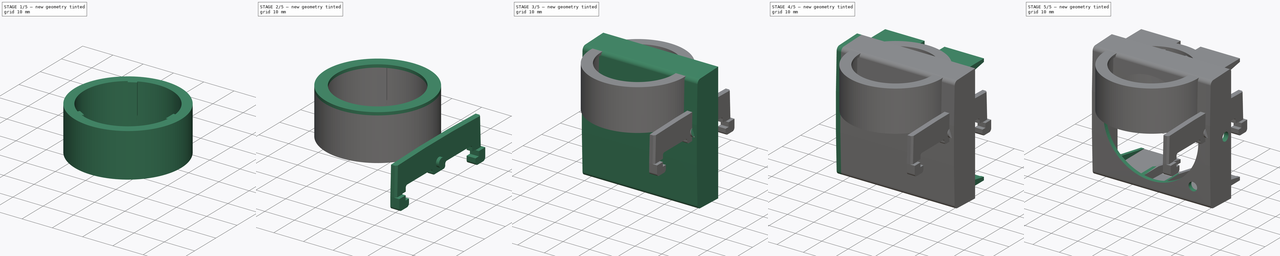
[diagram: build sequence overview — one tinted view per stage of 5, left to right]
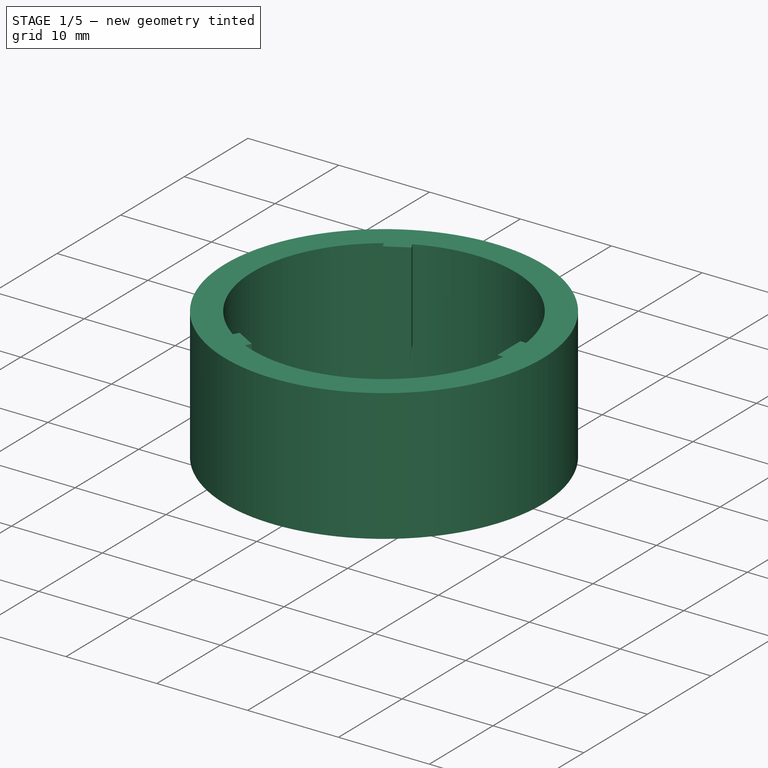
[diagram: stage 1 of 5 — iso view after this stage's code; geometry added in this stage tinted green]
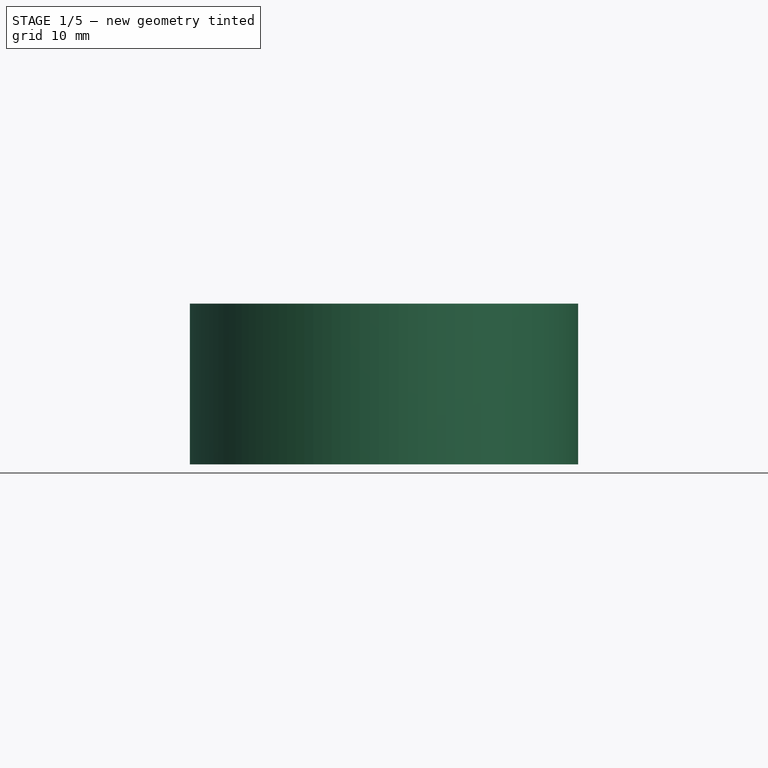
[diagram: stage 1 of 5 — front view after this stage's code; geometry added in this stage tinted green]
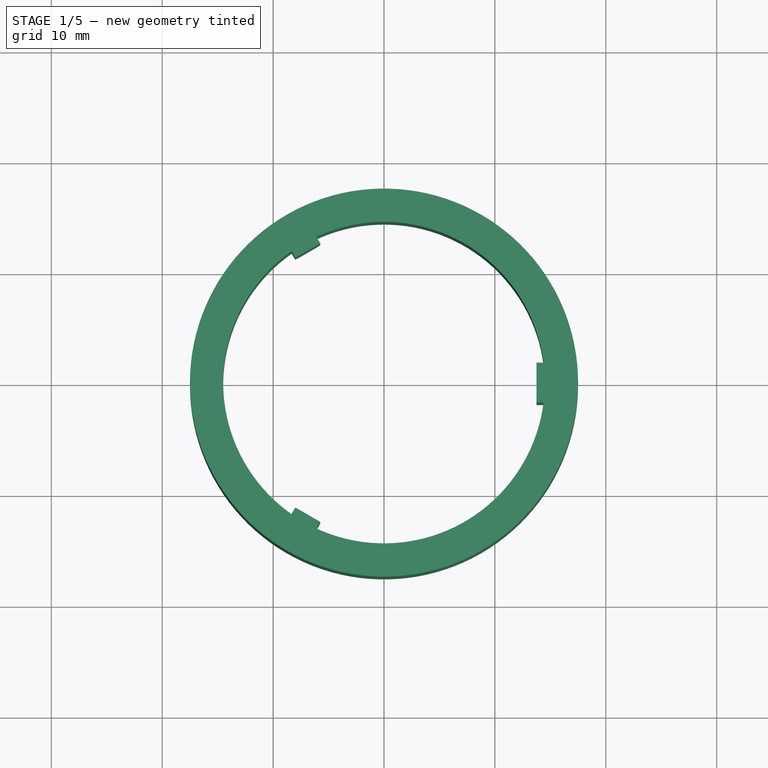
[diagram: stage 1 of 5 — top view after this stage's code; geometry added in this stage tinted green]
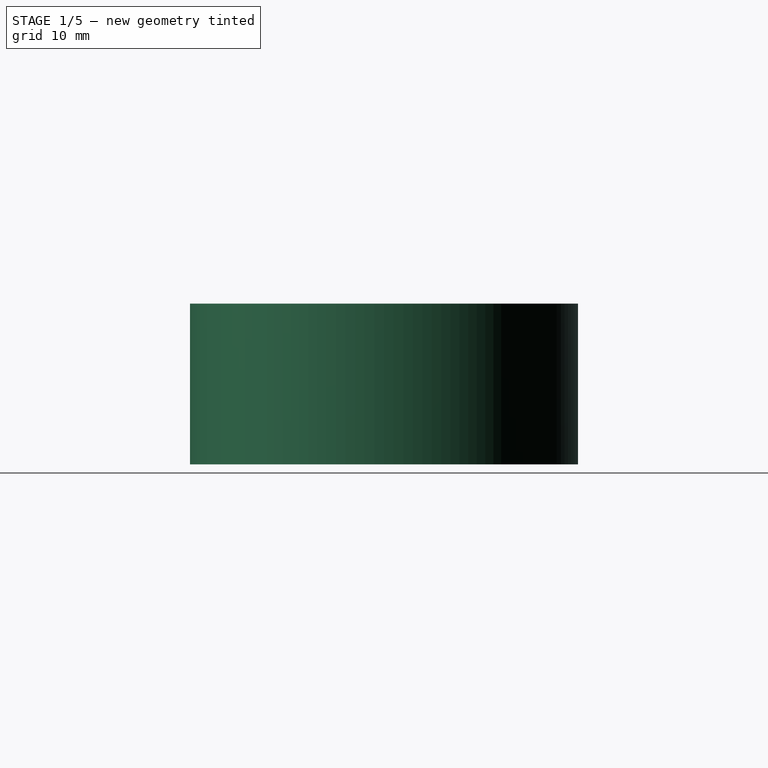
[diagram: stage 1 of 5 — right view after this stage's code; geometry added in this stage tinted green]
FCSTD DOCUMENT  (FreeCAD 0.21R33694 (Git))
Label: knob
License: All rights reserved
LicenseURL: http://en.wikipedia.org/wiki/All_rights_reserved
objects: Sketcher::SketchObject×17, PartDesign::Pad×14, PartDesign::Body×6, PartDesign::Chamfer×4, App::VRMLObject×3, PartDesign::Pocket×3, Part::Feature×1, App::MeasureDistance×1, PartDesign::FeatureBase×1
note: 67 computed .brp shape members not serialized (recipe doc carries the construction recipe); baked Part::Feature solids carry a one-line shape summary decoded from their .brp

FEATURE [PartDesign::Body] Body002  label="lightpipe"
  Origin = -> Origin002
FEATURE [PartDesign::Body] Body003  label="button"
  Origin = -> Origin003
FEATURE [Sketcher::SketchObject] Sketch009
  AttachmentOffset = pos=(0,0,20.75) rot=(0,0,1;0rad)
  FullyConstrained = true
  MapMode = 5
  Placement = pos=(0,0,20.75) rot=(0,0,1;0rad)
  Support = -> [XY_Plane001]
  sketch-geometry (21):
    g0: Circle CenterX=0 CenterY=0 CenterZ=0 NormalX=0 NormalY=0 NormalZ=1 AngleXU=0 Radius=14.4
    g1: LineSegment StartX=0 StartY=0 StartZ=0 EndX=-7.2 EndY=12.4708 EndZ=0
    g2: LineSegment StartX=0 StartY=0 StartZ=0 EndX=-7.2 EndY=-12.4708 EndZ=0
    g3: LineSegment StartX=0 StartY=0 StartZ=0 EndX=14.4 EndY=0 EndZ=0
    g4: LineSegment StartX=-8.34664 StartY=11.8568 StartZ=0 EndX=-8.00083 EndY=11.2578 EndZ=0
    g5: LineSegment StartX=-8.00083 StartY=11.2578 StartZ=0 EndX=-5.74917 EndY=12.5578 EndZ=0
    g6: LineSegment StartX=-5.74917 StartY=12.5578 StartZ=0 EndX=-6.09497 EndY=13.1568 EndZ=0
    g7: ArcOfCircle CenterX=0 CenterY=0 CenterZ=0 NormalX=0 NormalY=0 NormalZ=1 AngleXU=0 Radius=14.5 StartAngle=0.124459 EndAngle=2.00462
    g8: ArcOfCircle CenterX=0 CenterY=0 CenterZ=0 NormalX=0 NormalY=0 NormalZ=1 AngleXU=0 Radius=14.5 StartAngle=4.27857 EndAngle=6.15873
    g9: ArcOfCircle CenterX=0 CenterY=0 CenterZ=0 NormalX=0 NormalY=0 NormalZ=1 AngleXU=0 Radius=14.5 StartAngle=2.18417 EndAngle=4.09901
    g10: ArcOfCircle CenterX=0 CenterY=0 CenterZ=0 NormalX=0 NormalY=0 NormalZ=1 AngleXU=0 Radius=14.5 StartAngle=2.00462 EndAngle=2.18417
    g11: ArcOfCircle CenterX=0 CenterY=0 CenterZ=0 NormalX=0 NormalY=0 NormalZ=1 AngleXU=0 Radius=14.5 StartAngle=6.15873 EndAngle=6.40764
    g12: ArcOfCircle CenterX=0 CenterY=0 CenterZ=0 NormalX=0 NormalY=0 NormalZ=1 AngleXU=0 Radius=14.5 StartAngle=4.09901 EndAngle=4.27857
    g13: LineSegment StartX=14.3878 StartY=1.8 StartZ=0 EndX=13.75 EndY=1.8 EndZ=0
    g14: LineSegment StartX=14.3878 StartY=-1.8 StartZ=0 EndX=13.75 EndY=-1.8 EndZ=0
    g15: LineSegment StartX=13.75 StartY=1.8 StartZ=0 EndX=13.75 EndY=-1.8 EndZ=0
    g16: LineSegment StartX=-8.34664 StartY=-11.8568 StartZ=0 EndX=-8.00083 EndY=-11.2578 EndZ=0
    g17: LineSegment StartX=-8.00083 StartY=-11.2578 StartZ=0 EndX=-5.74917 EndY=-12.5578 EndZ=0
    g18: LineSegment StartX=-5.74917 StartY=-12.5578 StartZ=0 EndX=-6.09497 EndY=-13.1568 EndZ=0
    g19: Circle CenterX=0 CenterY=0 CenterZ=0 NormalX=0 NormalY=0 NormalZ=1 AngleXU=0 Radius=13.75
    g20: Circle CenterX=0 CenterY=0 CenterZ=0 NormalX=0 NormalY=0 NormalZ=1 AngleXU=0 Radius=17.5
  constraints (55):
    c: Coincident(g0,g-1)
    c: Diameter(g0) = 28.8
    c: Coincident(g1,g0)
    c: PointOnObject(g1,g0)
    c: Coincident(g2,g0)
    c: PointOnObject(g2,g0)
    c: Coincident(g3,g0)
    c: PointOnObject(g3,g0)
    c: Horizontal(g3)
    c: Angle(g3,g1) = 2.0944
    c: Angle(g2,g3) = 2.0944
    c: Coincident(g4,g5)
    c: Coincident(g5,g6)
    c: Parallel(g4,g1)
    c: Parallel(g1,g6)
    c: Symmetric(g4,g5,g1)
    c: Coincident(g7,g0)
    c: Coincident(g7,g6)
    c: Coincident(g8,g7)
    c: Coincident(g9,g7)
    c: Coincident(g4,g9)
    c: Coincident(g10,g7)
    c: Coincident(g10,g4)
    c: Coincident(g10,g6)
    c: Coincident(g11,g7)
    c: Coincident(g11,g7)
    c: Coincident(g11,g8)
    c: Coincident(g12,g7)
    c: Coincident(g12,g8)
    c: Coincident(g12,g9)
    c: Coincident(g13,g7)
    c: Horizontal(g13)
    c: Coincident(g14,g8)
    c: Horizontal(g14)
    c: Coincident(g15,g13)
    c: Coincident(g15,g14)
    c: Symmetric(g13,g14,g3)
    c: Coincident(g16,g9)
    c: Coincident(g17,g16)
    c: Coincident(g18,g17)
    c: Coincident(g18,g8)
    c: Symmetric(g17,g16,g2)
    c: Parallel(g18,g16)
    c: Parallel(g18,g2)
    c: Coincident(g19,g7)
    c: Tangent(g19,g15)
    c: Tangent(g17,g19)
    c: Tangent(g19,g5)
    c: Diameter(g19) = 27.5
    c: Diameter(g7) = 29
    c: DistanceY(g15,g15) = 3.6
    c: Equal(g5,g17)
    c: Distance(g5) = 2.6
    c: Coincident(g20,g7)
    c: Diameter(g20) = 35
FEATURE [PartDesign::Pad] Pad008
  Direction = (0,0,1)
  Length = 11.5
  Length2 = 10
  Profile = -> Sketch009
  ReferenceAxis = -> Sketch009 [N_Axis]
  Reversed = true
  Type = 0
FEATURE [PartDesign::Body] Body005  label="lock_clone"
  BaseFeature = -> Body004
  Group = -> [Clone]
  Origin = -> Origin005
  Placement = pos=(0,0,0) rot=(0,0,1;3.14159rad)
  Tip = -> Clone
FEATURE [Sketcher::SketchObject] Sketch016
  AttachmentOffset = pos=(0,0,9.25) rot=(0,0,1;0rad)
  FullyConstrained = false
  MapMode = 5
  Placement = pos=(0,0,9.25) rot=(0,0,1;0rad)
  Support = -> [XY_Plane001]
  sketch-geometry (22):
    g0: Circle CenterX=0 CenterY=0 CenterZ=0 NormalX=0 NormalY=0 NormalZ=1 AngleXU=0 Radius=14.4
    g1: LineSegment StartX=0 StartY=0 StartZ=0 EndX=-7.2 EndY=12.4708 EndZ=0
    g2: LineSegment StartX=0 StartY=0 StartZ=0 EndX=-7.2 EndY=-12.4708 EndZ=0
    g3: LineSegment StartX=0 StartY=0 StartZ=0 EndX=14.4 EndY=0 EndZ=0
    g4: LineSegment StartX=-8.34664 StartY=11.8568 StartZ=0 EndX=-8.00083 EndY=11.2578 EndZ=0
    g5: LineSegment StartX=-8.00083 StartY=11.2578 StartZ=0 EndX=-5.74917 EndY=12.5578 EndZ=0
    g6: LineSegment StartX=-5.74917 StartY=12.5578 StartZ=0 EndX=-6.09497 EndY=13.1568 EndZ=0
    g7: ArcOfCircle CenterX=0 CenterY=0 CenterZ=0 NormalX=0 NormalY=0 NormalZ=1 AngleXU=0 Radius=14.5 StartAngle=0.124459 EndAngle=2.00462
    g8: ArcOfCircle CenterX=0 CenterY=0 CenterZ=0 NormalX=0 NormalY=0 NormalZ=1 AngleXU=0 Radius=14.5 StartAngle=4.27857 EndAngle=6.15873
    g9: ArcOfCircle CenterX=0 CenterY=0 CenterZ=0 NormalX=0 NormalY=0 NormalZ=1 AngleXU=0 Radius=14.5 StartAngle=2.18417 EndAngle=4.09901
    g10: ArcOfCircle CenterX=0 CenterY=0 CenterZ=0 NormalX=0 NormalY=0 NormalZ=1 AngleXU=0 Radius=14.5 StartAngle=2.00462 EndAngle=2.18417
    g11: ArcOfCircle CenterX=0 CenterY=0 CenterZ=0 NormalX=0 NormalY=0 NormalZ=1 AngleXU=0 Radius=14.5 StartAngle=6.15873 EndAngle=6.40764
    g12: ArcOfCircle CenterX=0 CenterY=0 CenterZ=0 NormalX=0 NormalY=0 NormalZ=1 AngleXU=0 Radius=14.5 StartAngle=4.09901 EndAngle=4.27857
    g13: LineSegment StartX=14.3878 StartY=1.8 StartZ=0 EndX=13.75 EndY=1.8 EndZ=0
    g14: LineSegment StartX=14.3878 StartY=-1.8 StartZ=0 EndX=13.75 EndY=-1.8 EndZ=0
    g15: LineSegment StartX=13.75 StartY=1.8 StartZ=0 EndX=13.75 EndY=-1.8 EndZ=0
    g16: LineSegment StartX=-8.34664 StartY=-11.8568 StartZ=0 EndX=-8.00083 EndY=-11.2578 EndZ=0
    g17: LineSegment StartX=-8.00083 StartY=-11.2578 StartZ=0 EndX=-5.74917 EndY=-12.5578 EndZ=0
    g18: LineSegment StartX=-5.74917 StartY=-12.5578 StartZ=0 EndX=-6.09497 EndY=-13.1568 EndZ=0
    g19: Circle CenterX=0 CenterY=0 CenterZ=0 NormalX=0 NormalY=0 NormalZ=1 AngleXU=0 Radius=13.75
    g20: Circle CenterX=0 CenterY=0 CenterZ=0 NormalX=0 NormalY=0 NormalZ=1 AngleXU=0 Radius=17.5
    g21: ArcOfCircle CenterX=0 CenterY=0 CenterZ=0 NormalX=0 NormalY=0 NormalZ=1 AngleXU=0 Radius=14.5 StartAngle=0.124459 EndAngle=6.15873
  constraints (56):
    c: Coincident(g0,g-1)
    c: Diameter(g0) = 28.8
    c: Coincident(g1,g0)
    c: PointOnObject(g1,g0)
    c: Coincident(g2,g0)
    c: PointOnObject(g2,g0)
    c: Coincident(g3,g0)
    c: PointOnObject(g3,g0)
    c: Horizontal(g3)
    c: Angle(g3,g1) = 2.0944
    c: Angle(g2,g3) = 2.0944
    c: Coincident(g4,g5)
    c: Coincident(g5,g6)
    c: Parallel(g4,g1)
    c: Parallel(g1,g6)
    c: Symmetric(g4,g5,g1)
    c: Coincident(g7,g0)
    c: Coincident(g7,g6)
    c: Coincident(g8,g7)
    c: Coincident(g9,g7)
    c: Coincident(g4,g9)
    c: Coincident(g10,g7)
    c: Coincident(g10,g4)
    c: Coincident(g10,g6)
    c: Coincident(g11,g7)
    c: Coincident(g11,g7)
    c: Coincident(g12,g7)
    c: Coincident(g12,g8)
    c: Coincident(g12,g9)
    c: Coincident(g13,g7)
    c: Horizontal(g13)
    c: Coincident(g14,g8)
    c: Horizontal(g14)
    c: Coincident(g15,g13)
    c: Coincident(g15,g14)
    c: Symmetric(g13,g14,g3)
    c: Coincident(g16,g9)
    c: Coincident(g17,g16)
    c: Coincident(g18,g17)
    c: Coincident(g18,g8)
    c: Symmetric(g17,g16,g2)
    c: Parallel(g18,g16)
    c: Parallel(g18,g2)
    c: Coincident(g19,g7)
    c: Tangent(g19,g15)
    c: Tangent(g17,g19)
    c: Tangent(g19,g5)
    c: Diameter(g19) = 27.5
    c: Diameter(g7) = 29
    c: DistanceY(g15,g15) = 3.6
    c: Equal(g5,g17)
    c: Distance(g5) = 2.6
    c: Coincident(g20,g7)
    c: Diameter(g20) = 35
    c: Coincident(g21,g20)
    c: Coincident(g21,g13)
FEATURE [Sketcher::SketchObject] Sketch017
  AttachmentOffset = pos=(0,0,20.75) rot=(0,0,1;0rad)
  FullyConstrained = true
  MapMode = 5
  Placement = pos=(0,0,20.75) rot=(0,0,1;0rad)
  Support = -> [XY_Plane001]
  sketch-geometry (2):
    g0: Circle CenterX=0 CenterY=0 CenterZ=0 NormalX=0 NormalY=0 NormalZ=1 AngleXU=0 Radius=13.75
    g1: Circle CenterX=0 CenterY=0 CenterZ=0 NormalX=0 NormalY=0 NormalZ=1 AngleXU=0 Radius=17.5
  constraints (4):
    c: Coincident(g0,g-1)
    c: Coincident(g1,g0)
    c: Diameter(g1) = 35
    c: Diameter(g0) = 27.5
FEATURE [PartDesign::Chamfer] Chamfer
  Angle = 45
  Base = -> Pad008 [Edge39,Edge34,Edge10,Edge16]
  BaseFeature = -> Pad008
  ChamferType = 1
  FlipDirection = false
  Size = 1.5
  Size2 = 0.25
  SupportTransform = false
  UseAllEdges = false
FEATURE [PartDesign::Pad] Pad012
  BaseFeature = -> Chamfer
  Direction = (0,0,1)
  Length = 3
  Length2 = 10
  Profile = -> Sketch016
  ReferenceAxis = -> Sketch016 [N_Axis]
  Reversed = true
  Type = 0
FEATURE [PartDesign::Chamfer] Chamfer003
  Angle = 45
  Base = -> Pad012 [Edge63,Edge61]
  BaseFeature = -> Pad012
  ChamferType = 1
  FlipDirection = false
  Size = 1.5
  Size2 = 0.25
  SupportTransform = false
  UseAllEdges = false
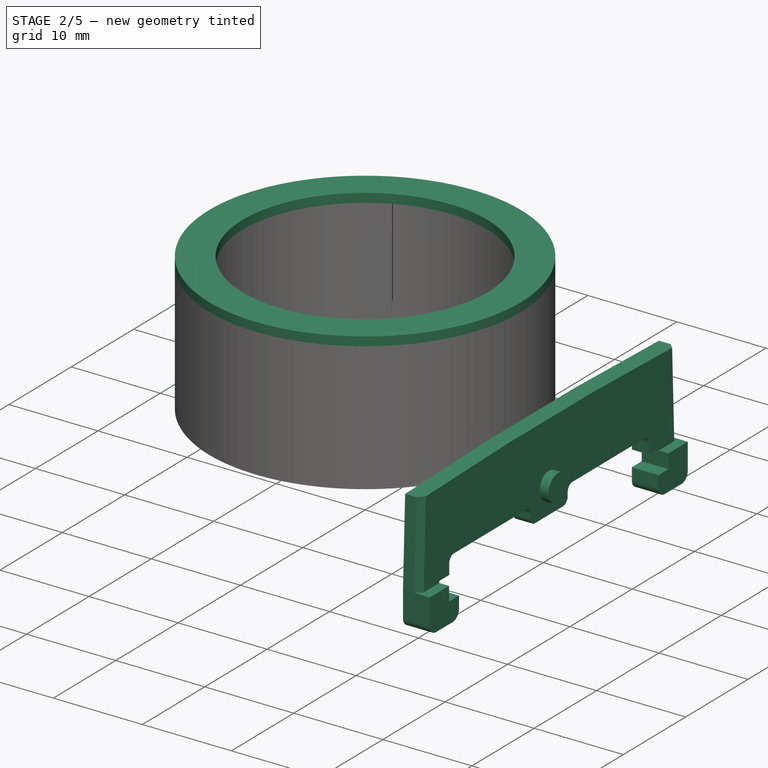
[diagram: stage 2 of 5 — iso view after this stage's code; geometry added in this stage tinted green]
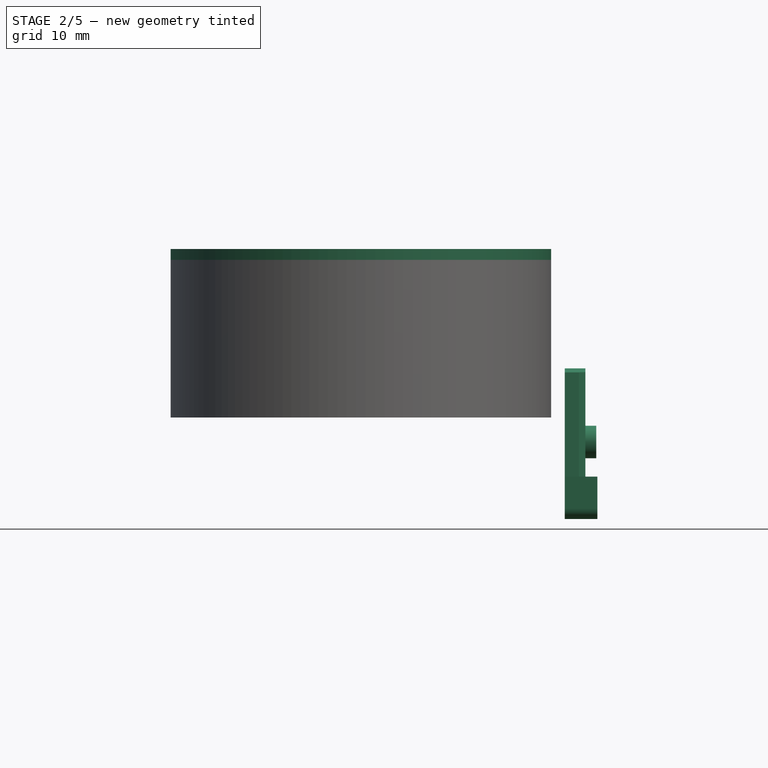
[diagram: stage 2 of 5 — front view after this stage's code; geometry added in this stage tinted green]
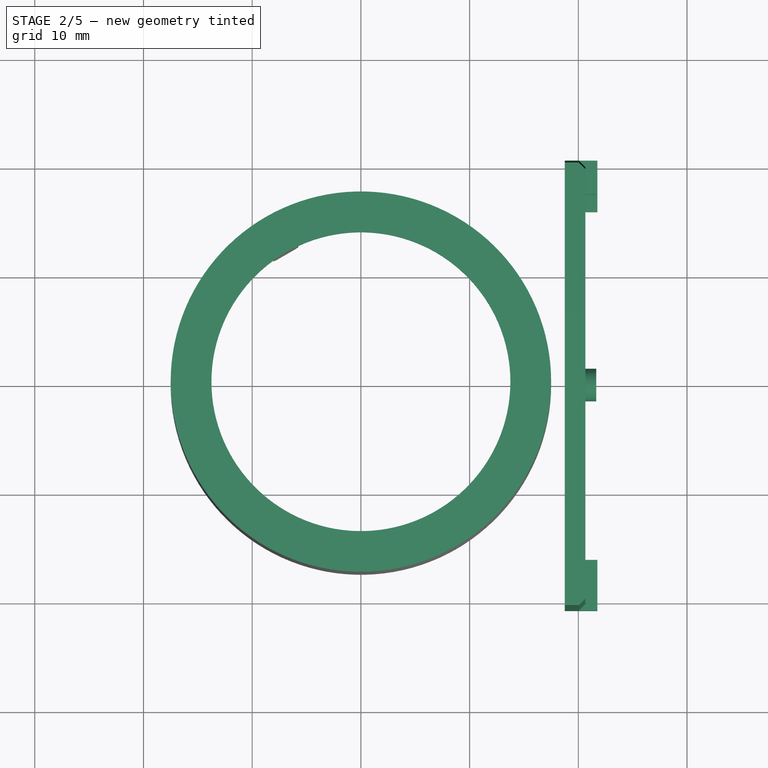
[diagram: stage 2 of 5 — top view after this stage's code; geometry added in this stage tinted green]
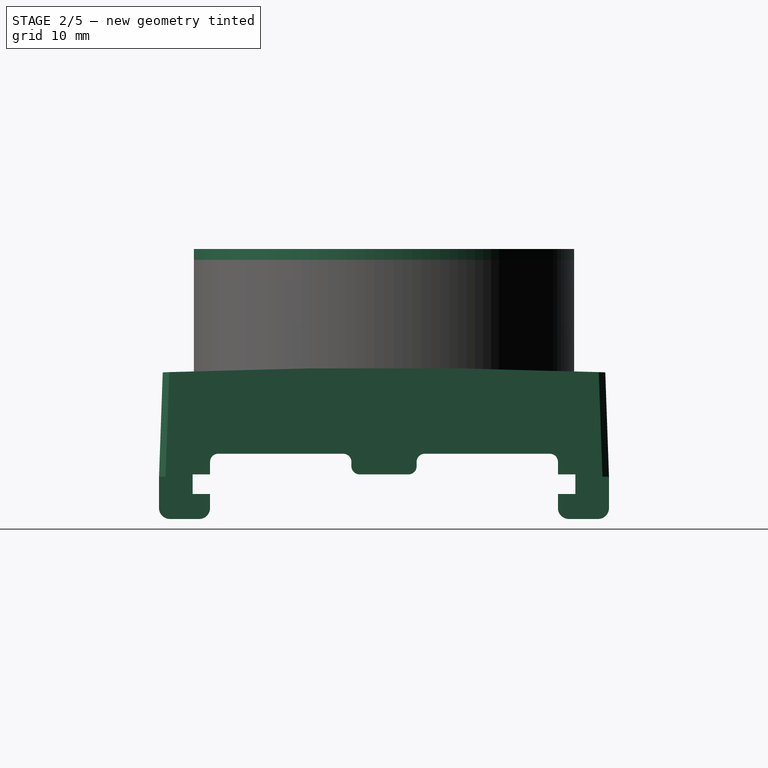
[diagram: stage 2 of 5 — right view after this stage's code; geometry added in this stage tinted green]
FEATURE [Sketcher::SketchObject] Sketch011
  AttachmentOffset = pos=(0,12,18.75) rot=(0,0,1;-1.5708rad)
  FullyConstrained = false
  MapMode = 5
  Placement = pos=(18.75,-1.5e-15,12) rot=(0,-1,0;4.71239rad)
  Support = -> [YZ_Plane004]
  sketch-geometry (77):
    g0: ArcOfCircle CenterX=499.612 CenterY=0 CenterZ=0 NormalX=0 NormalY=0 NormalZ=1 AngleXU=0 Radius=500.033 StartAngle=3.10056 EndAngle=3.18263
    g1: GeomPoint X=-0.4209 Y=0 Z=0
    g2: ArcOfCircle CenterX=1.49874 CenterY=20.4507 CenterZ=0 NormalX=0 NormalY=0 NormalZ=1 AngleXU=0 Radius=1.5 StartAngle=1.60638 EndAngle=3.10056
    g3: LineSegment StartX=1.44537 StartY=21.9497 StartZ=0 EndX=11.0791 EndY=22.2927 EndZ=0
    g4: LineSegment StartX=11.0791 StartY=22.2927 StartZ=0 EndX=11.0791 EndY=-22.2927 EndZ=0
    g5: ArcOfCircle CenterX=499.612 CenterY=0 CenterZ=0 NormalX=0 NormalY=0 NormalZ=1 AngleXU=0 Radius=498.533 StartAngle=3.10056 EndAngle=3.18263
    g6: GeomPoint X=11.0791 Y=0 Z=0
    g7: ArcOfCircle CenterX=1.49874 CenterY=-20.4507 CenterZ=0 NormalX=0 NormalY=0 NormalZ=1 AngleXU=0 Radius=1.5 StartAngle=3.18263 EndAngle=4.6768
    g8: LineSegment StartX=1.44537 StartY=-21.9497 StartZ=0 EndX=11.0791 EndY=-22.2927 EndZ=0
    g9: LineSegment StartX=1.49874 StartY=20.4507 StartZ=0 EndX=11.0791 EndY=20.7917 EndZ=0
    g10: LineSegment StartX=1.49874 StartY=-20.4507 StartZ=0 EndX=11.0791 EndY=-20.7917 EndZ=0
    g11: LineSegment StartX=11.0791 StartY=20.7917 StartZ=0 EndX=11.0791 EndY=22.2927 EndZ=0
    g12: LineSegment StartX=11.0791 StartY=-22.2927 StartZ=0 EndX=11.0791 EndY=-20.7917 EndZ=0
    g13: LineSegment StartX=11.0791 StartY=17.5 StartZ=0 EndX=12.6791 EndY=17.5 EndZ=0
    g14: LineSegment StartX=11.0791 StartY=-17.5 StartZ=0 EndX=12.6791 EndY=-17.5 EndZ=0
    g15: LineSegment StartX=11.1791 StartY=20.6952 StartZ=0 EndX=1.59486 EndY=20.354 EndZ=0
    g16: LineSegment StartX=11.1791 StartY=20.6952 StartZ=0 EndX=14.0791 EndY=20.6952 EndZ=0
    g17: LineSegment StartX=15.0791 StartY=19.6952 StartZ=0 EndX=15.0791 EndY=17 EndZ=0
    g18: LineSegment StartX=14.0791 StartY=16 StartZ=0 EndX=12.7791 EndY=16 EndZ=0
    g19: LineSegment StartX=12.7791 StartY=16 StartZ=0 EndX=12.7791 EndY=17.6 EndZ=0
    g20: LineSegment StartX=12.7791 StartY=17.6 StartZ=0 EndX=10.9791 EndY=17.6 EndZ=0
    g21: LineSegment StartX=10.9791 StartY=17.6 StartZ=0 EndX=10.9791 EndY=16 EndZ=0
    g22: LineSegment StartX=10.9791 StartY=16 StartZ=0 EndX=9.8291 EndY=16 EndZ=0
    g23: LineSegment StartX=9.0791 StartY=15.25 StartZ=0 EndX=9.0791 EndY=3.75 EndZ=0
    g24: LineSegment StartX=9.8291 StartY=3 StartZ=0 EndX=10.2291 EndY=3 EndZ=0
    g25: LineSegment StartX=10.9791 StartY=2.25 StartZ=0 EndX=10.9791 EndY=-2.25 EndZ=0
    g26: LineSegment StartX=10.2291 StartY=-3 StartZ=0 EndX=9.8291 EndY=-3 EndZ=0
    g27: LineSegment StartX=9.0791 StartY=-3.75 StartZ=0 EndX=9.0791 EndY=-15.25 EndZ=0
    g28: LineSegment StartX=9.8291 StartY=-16 StartZ=0 EndX=10.9791 EndY=-16 EndZ=0
    g29: LineSegment StartX=10.9791 StartY=-16 StartZ=0 EndX=10.9791 EndY=-17.6 EndZ=0
    g30: LineSegment StartX=10.9791 StartY=-17.6 StartZ=0 EndX=12.7791 EndY=-17.6 EndZ=0
    g31: LineSegment StartX=12.7791 StartY=-17.6 StartZ=0 EndX=12.7791 EndY=-16 EndZ=0
    g32: LineSegment StartX=12.7791 StartY=-16 StartZ=0 EndX=14.0791 EndY=-16 EndZ=0
    g33: LineSegment StartX=15.0791 StartY=-17 StartZ=0 EndX=15.0791 EndY=-19.6952 EndZ=0
    g34: LineSegment StartX=14.0791 StartY=-20.6952 StartZ=0 EndX=11.1791 EndY=-20.6952 EndZ=0
    g35: LineSegment StartX=11.1791 StartY=-20.6952 StartZ=0 EndX=1.59486 EndY=-20.354 EndZ=0
    g36: LineSegment StartX=10.9791 StartY=16 StartZ=0 EndX=12.7791 EndY=16 EndZ=0
    g37: LineSegment StartX=10.9791 StartY=16 StartZ=0 EndX=10.9791 EndY=3 EndZ=0
    g38: LineSegment StartX=10.9791 StartY=-16 StartZ=0 EndX=10.9791 EndY=-3 EndZ=0
    g39: LineSegment StartX=10.9791 StartY=-16 StartZ=0 EndX=12.7791 EndY=-16 EndZ=0
    g40: LineSegment StartX=12.7791 StartY=-16 StartZ=0 EndX=12.7791 EndY=16 EndZ=0
    g41: LineSegment StartX=15.0791 StartY=16 StartZ=0 EndX=15.0791 EndY=-16 EndZ=0
    g42: LineSegment StartX=9.0791 StartY=3 StartZ=0 EndX=9.0791 EndY=-3 EndZ=0
    g43: LineSegment StartX=11.1791 StartY=20.6952 StartZ=0 EndX=11.1791 EndY=-20.6952 EndZ=0
    g44: LineSegment StartX=1.59486 StartY=-20.354 StartZ=0 EndX=1.59486 EndY=20.354 EndZ=0
    g45: ArcOfCircle CenterX=499.612 CenterY=0 CenterZ=0 NormalX=0 NormalY=0 NormalZ=1 AngleXU=0 Radius=498.433 StartAngle=3.10075 EndAngle=3.18244
    g46: ArcOfCircle CenterX=14.0791 CenterY=19.6952 CenterZ=0 NormalX=0 NormalY=0 NormalZ=1 AngleXU=0 Radius=1 StartAngle=-9e-16 EndAngle=1.5708
    g47: GeomPoint X=15.0791 Y=20.6952 Z=0
    g48: ArcOfCircle CenterX=14.0791 CenterY=17 CenterZ=0 NormalX=0 NormalY=0 NormalZ=1 AngleXU=0 Radius=1 StartAngle=4.71239 EndAngle=6.28319
    g49: GeomPoint X=15.0791 Y=16 Z=0
    g50: ArcOfCircle CenterX=14.0791 CenterY=-17 CenterZ=0 NormalX=0 NormalY=0 NormalZ=1 AngleXU=0 Radius=1 StartAngle=0 EndAngle=1.5708
    g51: GeomPoint X=15.0791 Y=-16 Z=0
    g52: ArcOfCircle CenterX=14.0791 CenterY=-19.6952 CenterZ=0 NormalX=0 NormalY=0 NormalZ=1 AngleXU=0 Radius=1 StartAngle=4.71239 EndAngle=6.28319
    g53: GeomPoint X=15.0791 Y=-20.6952 Z=0
    g54: ArcOfCircle CenterX=9.8291 CenterY=15.25 CenterZ=0 NormalX=0 NormalY=0 NormalZ=1 AngleXU=0 Radius=0.75 StartAngle=1.5708 EndAngle=3.14159
    g55: GeomPoint X=9.0791 Y=16 Z=0
    g56: ArcOfCircle CenterX=9.8291 CenterY=3.75 CenterZ=0 NormalX=0 NormalY=0 NormalZ=1 AngleXU=0 Radius=0.75 StartAngle=3.14159 EndAngle=4.71239
    g57: GeomPoint X=9.0791 Y=3 Z=0
    g58: ArcOfCircle CenterX=9.8291 CenterY=-3.75 CenterZ=0 NormalX=0 NormalY=0 NormalZ=1 AngleXU=0 Radius=0.75 StartAngle=1.5708 EndAngle=3.14159
    g59: GeomPoint X=9.0791 Y=-3 Z=0
    g60: ArcOfCircle CenterX=10.2291 CenterY=-2.25 CenterZ=0 NormalX=0 NormalY=0 NormalZ=1 AngleXU=0 Radius=0.75 StartAngle=4.71239 EndAngle=6.28319
    g61: GeomPoint X=10.9791 Y=-3 Z=0
    g62: ArcOfCircle CenterX=10.2291 CenterY=2.25 CenterZ=0 NormalX=0 NormalY=0 NormalZ=1 AngleXU=0 Radius=0.75 StartAngle=0 EndAngle=1.5708
    g63: GeomPoint X=10.9791 Y=3 Z=0
    g64: ArcOfCircle CenterX=9.8291 CenterY=-15.25 CenterZ=0 NormalX=0 NormalY=0 NormalZ=1 AngleXU=0 Radius=0.75 StartAngle=3.14159 EndAngle=4.71239
    g65: GeomPoint X=9.0791 Y=-16 Z=0
    g66: LineSegment StartX=12.6791 StartY=17.5 StartZ=0 EndX=12.6791 EndY=16 EndZ=0
    g67: LineSegment StartX=12.6791 StartY=16 StartZ=0 EndX=11.0791 EndY=16 EndZ=0
    g68: LineSegment StartX=12.6791 StartY=-17.5 StartZ=0 EndX=12.6791 EndY=-16 EndZ=0
    g69: LineSegment StartX=12.6791 StartY=-16 StartZ=0 EndX=11.0791 EndY=-16 EndZ=0
    g70: LineSegment StartX=5.97147 StartY=-20.6099 StartZ=0 EndX=5.97503 EndY=-20.51 EndZ=0
    g71: LineSegment StartX=1.0791 StartY=0 StartZ=0 EndX=1.1791 EndY=0 EndZ=0
    g72: LineSegment StartX=11.1791 StartY=-20.6952 StartZ=0 EndX=11.0791 EndY=-20.6952 EndZ=0
    g73: LineSegment StartX=11.0791 StartY=17.5 StartZ=0 EndX=10.9791 EndY=17.5 EndZ=0
    g74: LineSegment StartX=12.6791 StartY=17.5 StartZ=0 EndX=12.6791 EndY=17.6 EndZ=0
    g75: LineSegment StartX=12.6791 StartY=16 StartZ=0 EndX=12.7791 EndY=16 EndZ=0
    g76: LineSegment StartX=12.7791 StartY=16 StartZ=0 EndX=12.7791 EndY=20.6952 EndZ=0
  constraints (195):
    c: PointOnObject(g0,g-1)
    c: PointOnObject(g0,g-2)
    c: PointOnObject(g0,g-2)
    c: DistanceY(g0,g0) = 41.0244
    c: PointOnObject(g1,g0)
    c: PointOnObject(g1,g-1)
    c: DistanceX(g1,g-1) = 0.4209
    c: Tangent(g2,g0) = -1.5708
    c: Radius(g2) = 1.5
    c: Angle(g2) = 1.49418
    c: Tangent(g3,g2) = 1.5708
    c: Coincident(g4,g3)
    c: Coincident(g5,g0)
    c: Coincident(g5,g2)
    c: PointOnObject(g6,g4)
    c: PointOnObject(g6,g-1)
    c: DistanceX(g1,g6) = 11.5
    c: Coincident(g7,g5)
    c: Coincident(g8,g4)
    c: Tangent(g7,g0) = -1.5708
    c: Tangent(g8,g7) = -1.5708
    c: Symmetric(g4,g3,g-1)
    c: Coincident(g9,g2)
    c: PointOnObject(g9,g4)
    c: Coincident(g10,g5)
    c: PointOnObject(g10,g4)
    c: Parallel(g9,g3)
    c: Parallel(g10,g8)
    c: Coincident(g11,g9)
    c: Coincident(g11,g3)
    c: Coincident(g12,g8)
    c: Coincident(g12,g10)
    c: PointOnObject(g13,g4)
    c: Horizontal(g13)
    c: PointOnObject(g14,g4)
    c: Horizontal(g14)
    c: Symmetric(g14,g13,g-1)
    c: DistanceY(g14,g13) = 35
    c: DistanceX(g14,g14) = 1.6
    c: Coincident(g16,g15)
    c: Horizontal(g16)
    c: Vertical(g17)
    c: Horizontal(g18)
    c: Coincident(g18,g19)
    c: Vertical(g19)
    c: Coincident(g19,g20)
    c: Horizontal(g20)
    c: Coincident(g20,g21)
    c: Vertical(g21)
    c: Coincident(g21,g22)
    c: Horizontal(g22)
    c: Vertical(g23)
    c: Horizontal(g24)
    c: Vertical(g25)
    c: Horizontal(g26)
    c: Vertical(g27)
    c: Horizontal(g28)
    c: Coincident(g28,g29)
    c: Vertical(g29)
    c: Coincident(g29,g30)
    c: Horizontal(g30)
    c: Coincident(g30,g31)
    c: Vertical(g31)
    c: Coincident(g31,g32)
    c: Horizontal(g32)
    c: Vertical(g33)
    c: Horizontal(g34)
    c: Coincident(g34,g35)
    c: Parallel(g35,g10)
    c: Parallel(g15,g9)
    c: Coincident(g21,g36)
    c: Coincident(g36,g18)
    c: Horizontal(g36)
    c: Coincident(g37,g21)
    c: Coincident(g37,g63)
    c: Vertical(g37)
    c: Coincident(g38,g28)
    c: Coincident(g38,g61)
    c: Vertical(g38)
    c: Coincident(g39,g28)
    c: Horizontal(g39)
    c: Coincident(g40,g31)
    c: Coincident(g40,g18)
    c: Vertical(g40)
    c: Coincident(g41,g49)
    c: Coincident(g41,g51)
    c: Vertical(g41)
    c: Coincident(g42,g57)
    c: Coincident(g42,g59)
    c: Coincident(g43,g15)
    c: Coincident(g43,g34)
    c: Vertical(g43)
    c: Coincident(g44,g35)
    c: Coincident(g44,g15)
    c: Vertical(g44)
    c: Coincident(g45,g0)
    c: Coincident(g45,g15)
    c: Coincident(g45,g35)
    c: PointOnObject(g47,g16)
    c: PointOnObject(g47,g17)
    c: Tangent(g16,g46) = 1.5708
    c: Tangent(g17,g46) = 1.5708
    c: PointOnObject(g49,g18)
    c: PointOnObject(g49,g17)
    c: Tangent(g18,g48) = 1.5708
    c: Tangent(g17,g48) = 1.5708
    c: PointOnObject(g51,g32)
    c: PointOnObject(g51,g33)
    c: Tangent(g32,g50) = 1.5708
    c: Tangent(g33,g50) = 1.5708
    c: PointOnObject(g53,g34)
    c: PointOnObject(g53,g33)
    c: Tangent(g34,g52) = 1.5708
    c: Tangent(g33,g52) = 1.5708
    c: Equal(g52,g50)
    c: Equal(g50,g48)
    c: Equal(g48,g46)
    c: PointOnObject(g55,g22)
    c: PointOnObject(g55,g23)
    c: Tangent(g22,g54) = -1.5708
    c: Tangent(g23,g54) = -1.5708
    c: PointOnObject(g57,g24)
    c: PointOnObject(g57,g23)
    c: Tangent(g24,g56) = -1.5708
    c: Tangent(g23,g56) = -1.5708
    c: PointOnObject(g59,g26)
    c: PointOnObject(g59,g27)
    c: Tangent(g26,g58) = -1.5708
    c: Tangent(g27,g58) = -1.5708
    c: PointOnObject(g61,g26)
    c: PointOnObject(g61,g25)
    c: Tangent(g26,g60) = 1.5708
    c: Tangent(g25,g60) = 1.5708
    c: PointOnObject(g63,g24)
    c: PointOnObject(g63,g25)
    c: Tangent(g24,g62) = 1.5708
    c: Tangent(g25,g62) = 1.5708
    c: PointOnObject(g65,g28)
    c: PointOnObject(g65,g27)
    c: Tangent(g28,g64) = -1.5708
    c: Tangent(g27,g64) = -1.5708
    c: Equal(g64,g58)
    c: Equal(g58,g60)
    c: Equal(g60,g62)
    c: Equal(g62,g56)
    c: Equal(g56,g54)
    c: Coincident(g66,g13)
    c: Vertical(g66)
    c: Coincident(g67,g66)
    c: PointOnObject(g67,g4)
    c: Horizontal(g67)
    c: Coincident(g68,g14)
    c: Vertical(g68)
    c: Coincident(g69,g68)
    c: PointOnObject(g69,g4)
    c: Horizontal(g69)
    c: DistanceY(g68,g68) = 1.5
    c: Equal(g68,g66)
    c: PointOnObject(g70,g10)
    c: PointOnObject(g70,g35)
    c: Perpendicular(g10,g70)
    c: PointOnObject(g71,g5)
    c: PointOnObject(g71,g45)
    c: Horizontal(g71)
    c: PointOnObject(g71,g-1)
    c: Equal(g71,g70)
    c: Coincident(g72,g34)
    c: PointOnObject(g72,g4)
    c: Equal(g72,g70)
    c: Horizontal(g72)
    c: DistanceX(g71,g71) = 0.1
    c: Coincident(g73,g13)
    c: PointOnObject(g73,g21)
    c: Horizontal(g73)
    c: Coincident(g74,g13)
    c: PointOnObject(g74,g20)
    c: Vertical(g74)
    c: Coincident(g75,g66)
    c: Horizontal(g75)
    c: Equal(g75,g74)
    c: Equal(g74,g73)
    c: DistanceY(g74,g74) = 0.1
    c: Coincident(g18,g75)
    c: DistanceX(g23,g67) = 2
    c: DistanceY(g42,g42) = 6
    c: Symmetric(g42,g42,g-1)
    c: Equal(g29,g21)
    c: Coincident(g31,g39)
    c: Equal(g27,g23)
    c: DistanceX(g9,g17) = 4
    c: Coincident(g76,g18)
    c: PointOnObject(g76,g16)
    c: Vertical(g76)
    c: Diameter(g52) = 2
    c: Diameter(g58) = 1.5
FEATURE [PartDesign::Pad] Pad009
  Direction = (1,-2e-16,0)
  Length = 1.9
  Length2 = 10
  Placement = pos=(0,0,0) rot=(0.57735,0.57735,0.57735;2.0944rad)
  Profile = -> Sketch011
  ReferenceAxis = -> Sketch011 [N_Axis]
  Type = 0
FEATURE [PartDesign::Chamfer] Chamfer002
  Angle = 45
  Base = -> Pad009 [Edge10,Edge16]
  BaseFeature = -> Pad009
  ChamferType = 0
  FlipDirection = false
  Placement = pos=(0,0,0) rot=(0.57735,0.57735,0.57735;2.0944rad)
  Size = 0.6
  Size2 = 1
  SupportTransform = false
  UseAllEdges = false
FEATURE [Sketcher::SketchObject] Sketch012
  AttachmentOffset = pos=(0,12,18.75) rot=(0,0,1;-1.5708rad)
  FullyConstrained = false
  MapMode = 5
  Placement = pos=(18.75,-1.5e-15,12) rot=(0,-1,0;4.71239rad)
  Support = -> [YZ_Plane004]
  sketch-geometry (81):
    g0: ArcOfCircle CenterX=499.612 CenterY=0 CenterZ=0 NormalX=0 NormalY=0 NormalZ=1 AngleXU=0 Radius=500.033 StartAngle=3.10056 EndAngle=3.18263
    g1: GeomPoint X=-0.4209 Y=0 Z=0
    g2: ArcOfCircle CenterX=1.49874 CenterY=20.4507 CenterZ=0 NormalX=0 NormalY=0 NormalZ=1 AngleXU=0 Radius=1.5 StartAngle=1.60638 EndAngle=3.10056
    g3: LineSegment StartX=1.44537 StartY=21.9497 StartZ=0 EndX=11.0791 EndY=22.2927 EndZ=0
    g4: LineSegment StartX=11.0791 StartY=22.2927 StartZ=0 EndX=11.0791 EndY=-22.2927 EndZ=0
    g5: ArcOfCircle CenterX=499.612 CenterY=0 CenterZ=0 NormalX=0 NormalY=0 NormalZ=1 AngleXU=0 Radius=498.533 StartAngle=3.10056 EndAngle=3.18263
    g6: GeomPoint X=11.0791 Y=0 Z=0
    g7: ArcOfCircle CenterX=1.49874 CenterY=-20.4507 CenterZ=0 NormalX=0 NormalY=0 NormalZ=1 AngleXU=0 Radius=1.5 StartAngle=3.18263 EndAngle=4.6768
    g8: LineSegment StartX=1.44537 StartY=-21.9497 StartZ=0 EndX=11.0791 EndY=-22.2927 EndZ=0
    g9: LineSegment StartX=1.49874 StartY=20.4507 StartZ=0 EndX=11.0791 EndY=20.7917 EndZ=0
    g10: LineSegment StartX=1.49874 StartY=-20.4507 StartZ=0 EndX=11.0791 EndY=-20.7917 EndZ=0
    g11: LineSegment StartX=11.0791 StartY=20.7917 StartZ=0 EndX=11.0791 EndY=22.2927 EndZ=0
    g12: LineSegment StartX=11.0791 StartY=-22.2927 StartZ=0 EndX=11.0791 EndY=-20.7917 EndZ=0
    g13: LineSegment StartX=11.0791 StartY=17.5 StartZ=0 EndX=12.6791 EndY=17.5 EndZ=0
    g14: LineSegment StartX=11.0791 StartY=-17.5 StartZ=0 EndX=12.6791 EndY=-17.5 EndZ=0
    g15: LineSegment StartX=11.1791 StartY=20.6952 StartZ=0 EndX=1.59486 EndY=20.354 EndZ=0
    g16: LineSegment StartX=11.1791 StartY=20.6952 StartZ=0 EndX=14.0791 EndY=20.6952 EndZ=0
    g17: LineSegment StartX=15.0791 StartY=19.6952 StartZ=0 EndX=15.0791 EndY=17 EndZ=0
    g18: LineSegment StartX=14.0791 StartY=16 StartZ=0 EndX=12.7791 EndY=16 EndZ=0
    g19: LineSegment StartX=12.7791 StartY=16 StartZ=0 EndX=12.7791 EndY=17.6 EndZ=0
    g20: LineSegment StartX=12.7791 StartY=17.6 StartZ=0 EndX=10.9791 EndY=17.6 EndZ=0
    g21: LineSegment StartX=10.9791 StartY=17.6 StartZ=0 EndX=10.9791 EndY=16 EndZ=0
    g22: LineSegment StartX=10.9791 StartY=16 StartZ=0 EndX=9.8291 EndY=16 EndZ=0
    g23: LineSegment StartX=9.0791 StartY=15.25 StartZ=0 EndX=9.0791 EndY=3.75 EndZ=0
    g24: LineSegment StartX=9.8291 StartY=3 StartZ=0 EndX=10.2291 EndY=3 EndZ=0
    g25: LineSegment StartX=10.9791 StartY=2.25 StartZ=0 EndX=10.9791 EndY=-2.25 EndZ=0
    g26: LineSegment StartX=10.2291 StartY=-3 StartZ=0 EndX=9.8291 EndY=-3 EndZ=0
    g27: LineSegment StartX=9.0791 StartY=-3.75 StartZ=0 EndX=9.0791 EndY=-15.25 EndZ=0
    g28: LineSegment StartX=9.8291 StartY=-16 StartZ=0 EndX=10.9791 EndY=-16 EndZ=0
    g29: LineSegment StartX=10.9791 StartY=-16 StartZ=0 EndX=10.9791 EndY=-17.6 EndZ=0
    g30: LineSegment StartX=10.9791 StartY=-17.6 StartZ=0 EndX=12.7791 EndY=-17.6 EndZ=0
    g31: LineSegment StartX=12.7791 StartY=-17.6 StartZ=0 EndX=12.7791 EndY=-16 EndZ=0
    g32: LineSegment StartX=12.7791 StartY=-16 StartZ=0 EndX=14.0791 EndY=-16 EndZ=0
    g33: LineSegment StartX=15.0791 StartY=-17 StartZ=0 EndX=15.0791 EndY=-19.6952 EndZ=0
    g34: LineSegment StartX=14.0791 StartY=-20.6952 StartZ=0 EndX=11.1791 EndY=-20.6952 EndZ=0
    g35: LineSegment StartX=11.1791 StartY=-20.6952 StartZ=0 EndX=1.59486 EndY=-20.354 EndZ=0
    g36: LineSegment StartX=10.9791 StartY=16 StartZ=0 EndX=12.7791 EndY=16 EndZ=0
    g37: LineSegment StartX=10.9791 StartY=16 StartZ=0 EndX=10.9791 EndY=3 EndZ=0
    g38: LineSegment StartX=10.9791 StartY=-16 StartZ=0 EndX=10.9791 EndY=-3 EndZ=0
    g39: LineSegment StartX=10.9791 StartY=-16 StartZ=0 EndX=12.7791 EndY=-16 EndZ=0
    g40: LineSegment StartX=12.7791 StartY=-16 StartZ=0 EndX=12.7791 EndY=16 EndZ=0
    g41: LineSegment StartX=15.0791 StartY=16 StartZ=0 EndX=15.0791 EndY=-16 EndZ=0
    g42: LineSegment StartX=9.0791 StartY=3 StartZ=0 EndX=9.0791 EndY=-3 EndZ=0
    g43: LineSegment StartX=11.1791 StartY=20.6952 StartZ=0 EndX=11.1791 EndY=-20.6952 EndZ=0
    g44: LineSegment StartX=1.59486 StartY=-20.354 StartZ=0 EndX=1.59486 EndY=20.354 EndZ=0
    g45: ArcOfCircle CenterX=499.612 CenterY=0 CenterZ=0 NormalX=0 NormalY=0 NormalZ=1 AngleXU=0 Radius=498.433 StartAngle=3.10075 EndAngle=3.18244
    g46: ArcOfCircle CenterX=14.0791 CenterY=19.6952 CenterZ=0 NormalX=0 NormalY=0 NormalZ=1 AngleXU=0 Radius=1 StartAngle=-9e-16 EndAngle=1.5708
    g47: GeomPoint X=15.0791 Y=20.6952 Z=0
    g48: ArcOfCircle CenterX=14.0791 CenterY=17 CenterZ=0 NormalX=0 NormalY=0 NormalZ=1 AngleXU=0 Radius=1 StartAngle=4.71239 EndAngle=6.28319
    g49: GeomPoint X=15.0791 Y=16 Z=0
    g50: ArcOfCircle CenterX=14.0791 CenterY=-17 CenterZ=0 NormalX=0 NormalY=0 NormalZ=1 AngleXU=0 Radius=1 StartAngle=0 EndAngle=1.5708
    g51: GeomPoint X=15.0791 Y=-16 Z=0
    g52: ArcOfCircle CenterX=14.0791 CenterY=-19.6952 CenterZ=0 NormalX=0 NormalY=0 NormalZ=1 AngleXU=0 Radius=1 StartAngle=4.71239 EndAngle=6.28319
    g53: GeomPoint X=15.0791 Y=-20.6952 Z=0
    g54: ArcOfCircle CenterX=9.8291 CenterY=15.25 CenterZ=0 NormalX=0 NormalY=0 NormalZ=1 AngleXU=0 Radius=0.75 StartAngle=1.5708 EndAngle=3.14159
    g55: GeomPoint X=9.0791 Y=16 Z=0
    g56: ArcOfCircle CenterX=9.8291 CenterY=3.75 CenterZ=0 NormalX=0 NormalY=0 NormalZ=1 AngleXU=0 Radius=0.75 StartAngle=3.14159 EndAngle=4.71239
    g57: GeomPoint X=9.0791 Y=3 Z=0
    g58: ArcOfCircle CenterX=9.8291 CenterY=-3.75 CenterZ=0 NormalX=0 NormalY=0 NormalZ=1 AngleXU=0 Radius=0.75 StartAngle=1.5708 EndAngle=3.14159
    g59: GeomPoint X=9.0791 Y=-3 Z=0
    g60: ArcOfCircle CenterX=10.2291 CenterY=-2.25 CenterZ=0 NormalX=0 NormalY=0 NormalZ=1 AngleXU=0 Radius=0.75 StartAngle=4.71239 EndAngle=6.28319
    g61: GeomPoint X=10.9791 Y=-3 Z=0
    g62: ArcOfCircle CenterX=10.2291 CenterY=2.25 CenterZ=0 NormalX=0 NormalY=0 NormalZ=1 AngleXU=0 Radius=0.75 StartAngle=0 EndAngle=1.5708
    g63: GeomPoint X=10.9791 Y=3 Z=0
    g64: ArcOfCircle CenterX=9.8291 CenterY=-15.25 CenterZ=0 NormalX=0 NormalY=0 NormalZ=1 AngleXU=0 Radius=0.75 StartAngle=3.14159 EndAngle=4.71239
    g65: GeomPoint X=9.0791 Y=-16 Z=0
    g66: LineSegment StartX=12.6791 StartY=17.5 StartZ=0 EndX=12.6791 EndY=16 EndZ=0
    g67: LineSegment StartX=12.6791 StartY=16 StartZ=0 EndX=11.0791 EndY=16 EndZ=0
    g68: LineSegment StartX=12.6791 StartY=-17.5 StartZ=0 EndX=12.6791 EndY=-16 EndZ=0
    g69: LineSegment StartX=12.6791 StartY=-16 StartZ=0 EndX=11.0791 EndY=-16 EndZ=0
    g70: LineSegment StartX=5.97147 StartY=-20.6099 StartZ=0 EndX=5.97503 EndY=-20.51 EndZ=0
    g71: LineSegment StartX=1.0791 StartY=0 StartZ=0 EndX=1.1791 EndY=0 EndZ=0
    g72: LineSegment StartX=11.1791 StartY=-20.6952 StartZ=0 EndX=11.0791 EndY=-20.6952 EndZ=0
    g73: LineSegment StartX=11.0791 StartY=17.5 StartZ=0 EndX=10.9791 EndY=17.5 EndZ=0
    g74: LineSegment StartX=12.6791 StartY=17.5 StartZ=0 EndX=12.6791 EndY=17.6 EndZ=0
    g75: LineSegment StartX=12.6791 StartY=16 StartZ=0 EndX=12.7791 EndY=16 EndZ=0
    g76: LineSegment StartX=12.7791 StartY=16 StartZ=0 EndX=12.7791 EndY=20.6952 EndZ=0
    g77: LineSegment StartX=11.1791 StartY=20.6952 StartZ=0 EndX=11.1791 EndY=17.6 EndZ=0
    g78: LineSegment StartX=11.1791 StartY=17.6 StartZ=0 EndX=12.7791 EndY=17.6 EndZ=0
    g79: LineSegment StartX=11.1791 StartY=-20.6952 StartZ=0 EndX=11.1791 EndY=-17.6 EndZ=0
    g80: LineSegment StartX=11.1791 StartY=-17.6 StartZ=0 EndX=12.7791 EndY=-17.6 EndZ=0
  constraints (205):
    c: PointOnObject(g0,g-1)
    c: PointOnObject(g0,g-2)
    c: PointOnObject(g0,g-2)
    c: DistanceY(g0,g0) = 41.0244
    c: PointOnObject(g1,g0)
    c: PointOnObject(g1,g-1)
    c: DistanceX(g1,g-1) = 0.4209
    c: Tangent(g2,g0) = -1.5708
    c: Radius(g2) = 1.5
    c: Angle(g2) = 1.49418
    c: Tangent(g3,g2) = 1.5708
    c: Coincident(g4,g3)
    c: Coincident(g5,g0)
    c: Coincident(g5,g2)
    c: PointOnObject(g6,g4)
    c: PointOnObject(g6,g-1)
    c: DistanceX(g1,g6) = 11.5
    c: Coincident(g7,g5)
    c: Coincident(g8,g4)
    c: Tangent(g7,g0) = -1.5708
    c: Tangent(g8,g7) = -1.5708
    c: Symmetric(g4,g3,g-1)
    c: Coincident(g9,g2)
    c: PointOnObject(g9,g4)
    c: Coincident(g10,g5)
    c: PointOnObject(g10,g4)
    c: Parallel(g9,g3)
    c: Parallel(g10,g8)
    c: Coincident(g11,g9)
    c: Coincident(g11,g3)
    c: Coincident(g12,g8)
    c: Coincident(g12,g10)
    c: PointOnObject(g13,g4)
    c: Horizontal(g13)
    c: PointOnObject(g14,g4)
    c: Horizontal(g14)
    c: Symmetric(g14,g13,g-1)
    c: DistanceY(g14,g13) = 35
    c: DistanceX(g14,g14) = 1.6
    c: Coincident(g16,g15)
    c: Horizontal(g16)
    c: Vertical(g17)
    c: Horizontal(g18)
    c: Coincident(g18,g19)
    c: Vertical(g19)
    c: Coincident(g19,g20)
    c: Horizontal(g20)
    c: Coincident(g20,g21)
    c: Vertical(g21)
    c: Coincident(g21,g22)
    c: Horizontal(g22)
    c: Vertical(g23)
    c: Horizontal(g24)
    c: Vertical(g25)
    c: Horizontal(g26)
    c: Vertical(g27)
    c: Horizontal(g28)
    c: Coincident(g28,g29)
    c: Vertical(g29)
    c: Coincident(g29,g30)
    c: Horizontal(g30)
    c: Coincident(g30,g31)
    c: Vertical(g31)
    c: Coincident(g31,g32)
    c: Horizontal(g32)
    c: Vertical(g33)
    c: Horizontal(g34)
    c: Coincident(g34,g35)
    c: Parallel(g35,g10)
    c: Parallel(g15,g9)
    c: Coincident(g21,g36)
    c: Coincident(g36,g18)
    c: Horizontal(g36)
    c: Coincident(g37,g21)
    c: Coincident(g37,g63)
    c: Vertical(g37)
    c: Coincident(g38,g28)
    c: Coincident(g38,g61)
    c: Vertical(g38)
    c: Coincident(g39,g28)
    c: Horizontal(g39)
    c: Coincident(g40,g31)
    c: Coincident(g40,g18)
    c: Vertical(g40)
    c: Coincident(g41,g49)
    c: Coincident(g41,g51)
    c: Vertical(g41)
    c: Coincident(g42,g57)
    c: Coincident(g42,g59)
    c: Coincident(g43,g15)
    c: Coincident(g43,g34)
    c: Vertical(g43)
    c: Coincident(g44,g35)
    c: Coincident(g44,g15)
    c: Vertical(g44)
    c: Coincident(g45,g0)
    c: Coincident(g45,g15)
    c: Coincident(g45,g35)
    c: PointOnObject(g47,g16)
    c: PointOnObject(g47,g17)
    c: Tangent(g16,g46) = 1.5708
    c: Tangent(g17,g46) = 1.5708
    c: PointOnObject(g49,g18)
    c: PointOnObject(g49,g17)
    c: Tangent(g18,g48) = 1.5708
    c: Tangent(g17,g48) = 1.5708
    c: PointOnObject(g51,g32)
    c: PointOnObject(g51,g33)
    c: Tangent(g32,g50) = 1.5708
    c: Tangent(g33,g50) = 1.5708
    c: PointOnObject(g53,g34)
    c: PointOnObject(g53,g33)
    c: Tangent(g34,g52) = 1.5708
    c: Tangent(g33,g52) = 1.5708
    c: Equal(g52,g50)
    c: Equal(g50,g48)
    c: Equal(g48,g46)
    c: PointOnObject(g55,g22)
    c: PointOnObject(g55,g23)
    c: Tangent(g22,g54) = -1.5708
    c: Tangent(g23,g54) = -1.5708
    c: PointOnObject(g57,g24)
    c: PointOnObject(g57,g23)
    c: Tangent(g24,g56) = -1.5708
    c: Tangent(g23,g56) = -1.5708
    c: PointOnObject(g59,g26)
    c: PointOnObject(g59,g27)
    c: Tangent(g26,g58) = -1.5708
    c: Tangent(g27,g58) = -1.5708
    c: PointOnObject(g61,g26)
    c: PointOnObject(g61,g25)
    c: Tangent(g26,g60) = 1.5708
    c: Tangent(g25,g60) = 1.5708
    c: PointOnObject(g63,g24)
    c: PointOnObject(g63,g25)
    c: Tangent(g24,g62) = 1.5708
    c: Tangent(g25,g62) = 1.5708
    c: PointOnObject(g65,g28)
    c: PointOnObject(g65,g27)
    c: Tangent(g28,g64) = -1.5708
    c: Tangent(g27,g64) = -1.5708
    c: Equal(g64,g58)
    c: Equal(g58,g60)
    c: Equal(g60,g62)
    c: Equal(g62,g56)
    c: Equal(g56,g54)
    c: Coincident(g66,g13)
    c: Vertical(g66)
    c: Coincident(g67,g66)
    c: PointOnObject(g67,g4)
    c: Horizontal(g67)
    c: Coincident(g68,g14)
    c: Vertical(g68)
    c: Coincident(g69,g68)
    c: PointOnObject(g69,g4)
    c: Horizontal(g69)
    c: DistanceY(g68,g68) = 1.5
    c: Equal(g68,g66)
    c: PointOnObject(g70,g10)
    c: PointOnObject(g70,g35)
    c: Perpendicular(g10,g70)
    c: PointOnObject(g71,g5)
    c: PointOnObject(g71,g45)
    c: Horizontal(g71)
    c: PointOnObject(g71,g-1)
    c: Equal(g71,g70)
    c: Coincident(g72,g34)
    c: PointOnObject(g72,g4)
    c: Equal(g72,g70)
    c: Horizontal(g72)
    c: DistanceX(g71,g71) = 0.1
    c: Coincident(g73,g13)
    c: PointOnObject(g73,g21)
    c: Horizontal(g73)
    c: Coincident(g74,g13)
    c: PointOnObject(g74,g20)
    c: Vertical(g74)
    c: Coincident(g75,g66)
    c: Horizontal(g75)
    c: Equal(g75,g74)
    c: Equal(g74,g73)
    c: DistanceY(g74,g74) = 0.1
    c: Coincident(g18,g75)
    c: DistanceX(g23,g67) = 2
    c: DistanceY(g42,g42) = 6
    c: Symmetric(g42,g42,g-1)
    c: Equal(g29,g21)
    c: Coincident(g31,g39)
    c: Equal(g27,g23)
    c: DistanceX(g9,g17) = 4
    c: Coincident(g76,g18)
    c: PointOnObject(g76,g16)
    c: Vertical(g76)
    c: Diameter(g52) = 2
    c: Diameter(g58) = 1.5
    c: Coincident(g77,g16)
    c: PointOnObject(g77,g20)
    c: Vertical(g77)
    c: Coincident(g78,g77)
    c: Coincident(g78,g19)
    c: Coincident(g79,g34)
    c: PointOnObject(g79,g30)
    c: Vertical(g79)
    c: Coincident(g80,g79)
    c: Coincident(g80,g31)
FEATURE [PartDesign::Pad] Pad010
  BaseFeature = -> Chamfer002
  Direction = (1,-2e-16,0)
  Length = 3
  Length2 = 10
  Placement = pos=(0,0,0) rot=(0.57735,0.57735,0.57735;2.0944rad)
  Profile = -> Sketch012
  ReferenceAxis = -> Sketch012 [N_Axis]
  Type = 0
FEATURE [PartDesign::Body] Body  label="copriforo2m"
  Group = -> [Sketch,Sketch001,Sketch002,Pad,Pad001,Pad002,Sketch003,Pad003,Sketch004,Sketch005,Sketch006,Sketch007,Pad004,Pad005,Pad006,Pad007,Sketch008,Pocket,Chamfer001,Sketch013,Pocket001]
  Origin = -> Origin
  Placement = pos=(0,0,12) rot=(-1,0,0;1.5708rad)
  Tip = -> Pocket001
FEATURE [Sketcher::SketchObject] Sketch014
  AttachmentOffset = pos=(0,12,20.65) rot=(0,0,1;0rad)
  FullyConstrained = true
  MapMode = 5
  Placement = pos=(20.65,-1.9e-15,12) rot=(0.57735,0.57735,0.57735;2.0944rad)
  Support = -> [YZ_Plane004]
  sketch-geometry (1):
    g0: Circle CenterX=0 CenterY=-8 CenterZ=0 NormalX=0 NormalY=0 NormalZ=1 AngleXU=0 Radius=1.5
  constraints (3):
    c: PointOnObject(g0,g-2)
    c: DistanceY(g0) = -8
    c: Diameter(g0) = 3
FEATURE [PartDesign::Pad] Pad011
  BaseFeature = -> Pad010
  Direction = (1,-2e-16,3e-16)
  Length = 1
  Length2 = 10
  Placement = pos=(0,0,0) rot=(0.57735,0.57735,0.57735;2.0944rad)
  Profile = -> Sketch014
  ReferenceAxis = -> Sketch014 [N_Axis]
  Type = 0
FEATURE [PartDesign::Pad] Pad013
  BaseFeature = -> Chamfer003
  Direction = (0,0,1)
  Length = 1
  Length2 = 10
  Profile = -> Sketch017
  ReferenceAxis = -> Sketch017 [N_Axis]
  Type = 0
FEATURE [PartDesign::Body] Body001  label="ring"
  Group = -> [Sketch009,Pad008,Sketch016,Sketch017,Chamfer,Pad012,Chamfer003,Pad013]
  Origin = -> Origin001
  Placement = pos=(0,0,0.13) rot=(0,0,1;3.14159rad)
  Tip = -> Pad013
FEATURE [App::VRMLObject] knob_exp_mos
  Placement = pos=(149,103.75,-11) rot=(0,1,0;3.14159rad)
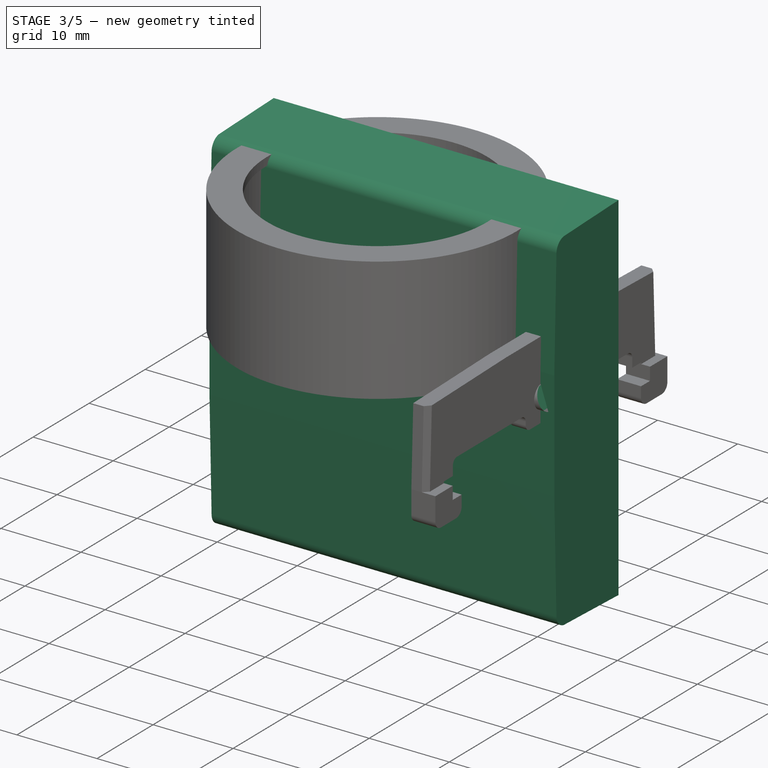
[diagram: stage 3 of 5 — iso view after this stage's code; geometry added in this stage tinted green]
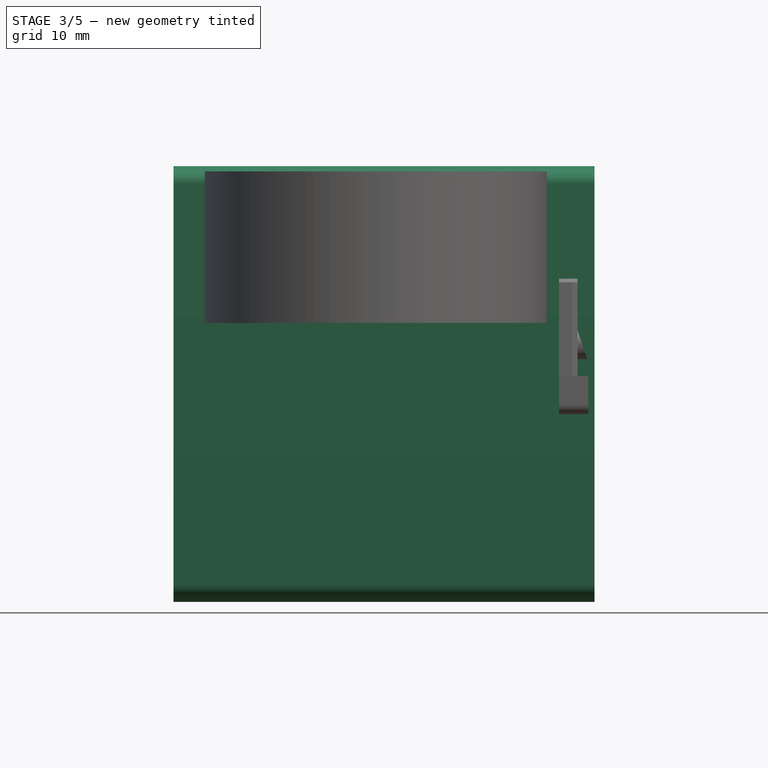
[diagram: stage 3 of 5 — front view after this stage's code; geometry added in this stage tinted green]
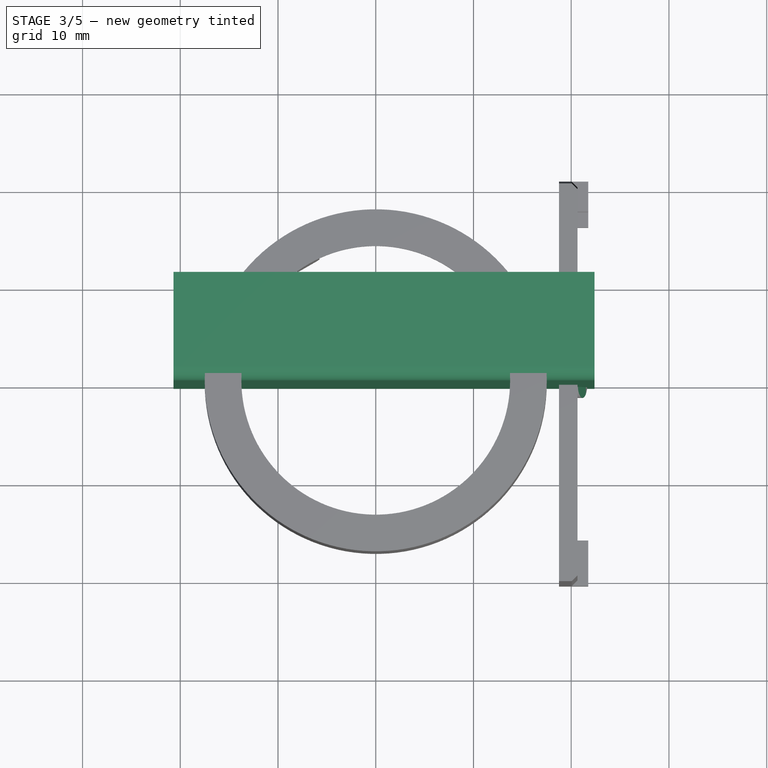
[diagram: stage 3 of 5 — top view after this stage's code; geometry added in this stage tinted green]
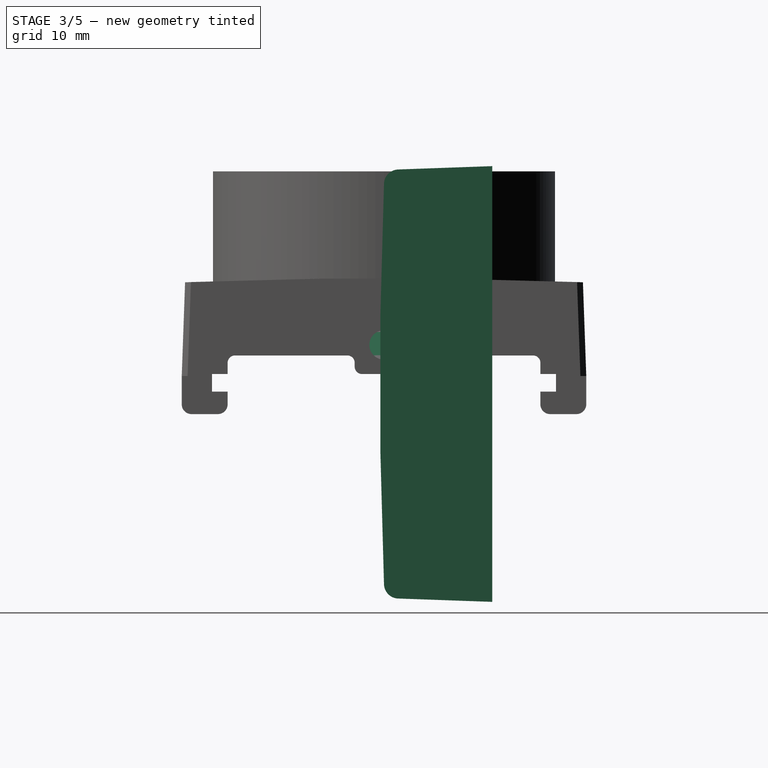
[diagram: stage 3 of 5 — right view after this stage's code; geometry added in this stage tinted green]
FEATURE [App::VRMLObject] knob_base
  Placement = pos=(0,-0.3,0.13) rot=(0,1,0;3.14159rad)
FEATURE [App::VRMLObject] knob_top
  Placement = pos=(0,0,12.2) rot=(0,0,1;0rad)
FEATURE [Part::Feature] Feature  label="knob_base001"
  Placement = pos=(149,104,0.75) rot=(0,1,0;3.14159rad)
  shape: bbox 41.3 x 40.5 x 23.42 mm, 1584 faces, 3 solids (baked)
FEATURE [Sketcher::SketchObject] Sketch
  FullyConstrained = true
  MapMode = 5
  Placement = pos=(0,0,0) rot=(0.57735,0.57735,0.57735;2.0944rad)
  Support = -> [YZ_Plane]
  sketch-geometry (13):
    g0: ArcOfCircle CenterX=499.612 CenterY=0 CenterZ=0 NormalX=0 NormalY=0 NormalZ=1 AngleXU=0 Radius=500.033 StartAngle=3.10056 EndAngle=3.18263
    g1: GeomPoint X=-0.4209 Y=0 Z=0
    g2: ArcOfCircle CenterX=1.49874 CenterY=20.4507 CenterZ=0 NormalX=0 NormalY=0 NormalZ=1 AngleXU=0 Radius=1.5 StartAngle=1.60638 EndAngle=3.10056
    g3: LineSegment StartX=1.44537 StartY=21.9497 StartZ=0 EndX=11.0791 EndY=22.2927 EndZ=0
    g4: LineSegment StartX=11.0791 StartY=22.2927 StartZ=0 EndX=11.0791 EndY=-22.2927 EndZ=0
    g5: ArcOfCircle CenterX=499.612 CenterY=0 CenterZ=0 NormalX=0 NormalY=0 NormalZ=1 AngleXU=0 Radius=498.533 StartAngle=3.10056 EndAngle=3.18263
    g6: GeomPoint X=11.0791 Y=0 Z=0
    g7: ArcOfCircle CenterX=1.49874 CenterY=-20.4507 CenterZ=0 NormalX=0 NormalY=0 NormalZ=1 AngleXU=0 Radius=1.5 StartAngle=3.18263 EndAngle=4.6768
    g8: LineSegment StartX=1.44537 StartY=-21.9497 StartZ=0 EndX=11.0791 EndY=-22.2927 EndZ=0
    g9: LineSegment StartX=1.49874 StartY=20.4507 StartZ=0 EndX=11.0791 EndY=20.7917 EndZ=0
    g10: LineSegment StartX=1.49874 StartY=-20.4507 StartZ=0 EndX=11.0791 EndY=-20.7917 EndZ=0
    g11: LineSegment StartX=11.0791 StartY=20.7917 StartZ=0 EndX=11.0791 EndY=22.2927 EndZ=0
    g12: LineSegment StartX=11.0791 StartY=-22.2927 StartZ=0 EndX=11.0791 EndY=-20.7917 EndZ=0
  constraints (32):
    c: PointOnObject(g0,g-1)
    c: PointOnObject(g0,g-2)
    c: PointOnObject(g0,g-2)
    c: DistanceY(g0,g0) = 41.0244
    c: PointOnObject(g1,g0)
    c: PointOnObject(g1,g-1)
    c: DistanceX(g1,g-1) = 0.4209
    c: Tangent(g2,g0) = -1.5708
    c: Radius(g2) = 1.5
    c: Angle(g2) = 1.49418
    c: Tangent(g3,g2) = 1.5708
    c: Coincident(g4,g3)
    c: Coincident(g5,g0)
    c: Coincident(g5,g2)
    c: PointOnObject(g6,g4)
    c: PointOnObject(g6,g-1)
    c: DistanceX(g1,g6) = 11.5
    c: Coincident(g7,g5)
    c: Coincident(g8,g4)
    c: Tangent(g7,g0) = -1.5708
    c: Tangent(g8,g7) = -1.5708
    c: Symmetric(g4,g3,g-1)
    c: Coincident(g9,g2)
    c: PointOnObject(g9,g4)
    c: Coincident(g10,g5)
    c: PointOnObject(g10,g4)
    c: Parallel(g9,g3)
    c: Parallel(g10,g8)
    c: Coincident(g11,g9)
    c: Coincident(g11,g3)
    c: Coincident(g12,g8)
    c: Coincident(g12,g10)
FEATURE [Sketcher::SketchObject] Sketch001
  AttachmentOffset = pos=(0,0,20.69) rot=(0,0,1;0rad)
  FullyConstrained = true
  MapMode = 5
  Placement = pos=(20.69,-4.6e-15,4.6e-15) rot=(0.57735,0.57735,0.57735;2.0944rad)
  Support = -> [YZ_Plane]
  sketch-geometry (13):
    g0: ArcOfCircle CenterX=499.612 CenterY=0 CenterZ=0 NormalX=0 NormalY=0 NormalZ=1 AngleXU=0 Radius=500.033 StartAngle=3.10056 EndAngle=3.18263
    g1: GeomPoint X=-0.4209 Y=0 Z=0
    g2: ArcOfCircle CenterX=1.49874 CenterY=20.4507 CenterZ=0 NormalX=0 NormalY=0 NormalZ=1 AngleXU=0 Radius=1.5 StartAngle=1.60638 EndAngle=3.10056
    g3: LineSegment StartX=1.44537 StartY=21.9497 StartZ=0 EndX=11.0791 EndY=22.2927 EndZ=0
    g4: LineSegment StartX=11.0791 StartY=22.2927 StartZ=0 EndX=11.0791 EndY=-22.2927 EndZ=0
    g5: ArcOfCircle CenterX=499.612 CenterY=0 CenterZ=0 NormalX=0 NormalY=0 NormalZ=1 AngleXU=0 Radius=498.533 StartAngle=3.10056 EndAngle=3.18263
    g6: GeomPoint X=11.0791 Y=0 Z=0
    g7: ArcOfCircle CenterX=1.49874 CenterY=-20.4507 CenterZ=0 NormalX=0 NormalY=0 NormalZ=1 AngleXU=0 Radius=1.5 StartAngle=3.18263 EndAngle=4.6768
    g8: LineSegment StartX=1.44537 StartY=-21.9497 StartZ=0 EndX=11.0791 EndY=-22.2927 EndZ=0
    g9: LineSegment StartX=1.49874 StartY=20.4507 StartZ=0 EndX=11.0791 EndY=20.7917 EndZ=0
    g10: LineSegment StartX=1.49874 StartY=-20.4507 StartZ=0 EndX=11.0791 EndY=-20.7917 EndZ=0
    g11: LineSegment StartX=11.0791 StartY=20.7917 StartZ=0 EndX=11.0791 EndY=22.2927 EndZ=0
    g12: LineSegment StartX=11.0791 StartY=-22.2927 StartZ=0 EndX=11.0791 EndY=-20.7917 EndZ=0
  constraints (32):
    c: PointOnObject(g0,g-1)
    c: PointOnObject(g0,g-2)
    c: PointOnObject(g0,g-2)
    c: DistanceY(g0,g0) = 41.0244
    c: PointOnObject(g1,g0)
    c: PointOnObject(g1,g-1)
    c: DistanceX(g1,g-1) = 0.4209
    c: Tangent(g2,g0) = -1.5708
    c: Radius(g2) = 1.5
    c: Angle(g2) = 1.49418
    c: Tangent(g3,g2) = 1.5708
    c: Coincident(g4,g3)
    c: Coincident(g5,g0)
    c: Coincident(g5,g2)
    c: PointOnObject(g6,g4)
    c: PointOnObject(g6,g-1)
    c: DistanceX(g1,g6) = 11.5
    c: Coincident(g7,g5)
    c: Coincident(g8,g4)
    c: Tangent(g7,g0) = -1.5708
    c: Tangent(g8,g7) = -1.5708
    c: Symmetric(g4,g3,g-1)
    c: Coincident(g9,g2)
    c: PointOnObject(g9,g4)
    c: Coincident(g10,g5)
    c: PointOnObject(g10,g4)
    c: Parallel(g9,g3)
    c: Parallel(g10,g8)
    c: Coincident(g11,g9)
    c: Coincident(g11,g3)
    c: Coincident(g12,g8)
    c: Coincident(g12,g10)
FEATURE [Sketcher::SketchObject] Sketch002
  AttachmentOffset = pos=(0,0,-20.69) rot=(0,0,1;0rad)
  FullyConstrained = true
  MapMode = 5
  Placement = pos=(-20.69,4.6e-15,-4.6e-15) rot=(0.57735,0.57735,0.57735;2.0944rad)
  Support = -> [YZ_Plane]
  sketch-geometry (13):
    g0: ArcOfCircle CenterX=499.612 CenterY=0 CenterZ=0 NormalX=0 NormalY=0 NormalZ=1 AngleXU=0 Radius=500.033 StartAngle=3.10056 EndAngle=3.18263
    g1: GeomPoint X=-0.4209 Y=0 Z=0
    g2: ArcOfCircle CenterX=1.49874 CenterY=20.4507 CenterZ=0 NormalX=0 NormalY=0 NormalZ=1 AngleXU=0 Radius=1.5 StartAngle=1.60638 EndAngle=3.10056
    g3: LineSegment StartX=1.44537 StartY=21.9497 StartZ=0 EndX=11.0791 EndY=22.2927 EndZ=0
    g4: LineSegment StartX=11.0791 StartY=22.2927 StartZ=0 EndX=11.0791 EndY=-22.2927 EndZ=0
    g5: ArcOfCircle CenterX=499.612 CenterY=0 CenterZ=0 NormalX=0 NormalY=0 NormalZ=1 AngleXU=0 Radius=498.533 StartAngle=3.10056 EndAngle=3.18263
    g6: GeomPoint X=11.0791 Y=0 Z=0
    g7: ArcOfCircle CenterX=1.49874 CenterY=-20.4507 CenterZ=0 NormalX=0 NormalY=0 NormalZ=1 AngleXU=0 Radius=1.5 StartAngle=3.18263 EndAngle=4.6768
    g8: LineSegment StartX=1.44537 StartY=-21.9497 StartZ=0 EndX=11.0791 EndY=-22.2927 EndZ=0
    g9: LineSegment StartX=1.49874 StartY=20.4507 StartZ=0 EndX=11.0791 EndY=20.7917 EndZ=0
    g10: LineSegment StartX=1.49874 StartY=-20.4507 StartZ=0 EndX=11.0791 EndY=-20.7917 EndZ=0
    g11: LineSegment StartX=11.0791 StartY=20.7917 StartZ=0 EndX=11.0791 EndY=22.2927 EndZ=0
    g12: LineSegment StartX=11.0791 StartY=-22.2927 StartZ=0 EndX=11.0791 EndY=-20.7917 EndZ=0
  constraints (32):
    c: PointOnObject(g0,g-1)
    c: PointOnObject(g0,g-2)
    c: PointOnObject(g0,g-2)
    c: DistanceY(g0,g0) = 41.0244
    c: PointOnObject(g1,g0)
    c: PointOnObject(g1,g-1)
    c: DistanceX(g1,g-1) = 0.4209
    c: Tangent(g2,g0) = -1.5708
    c: Radius(g2) = 1.5
    c: Angle(g2) = 1.49418
    c: Tangent(g3,g2) = 1.5708
    c: Coincident(g4,g3)
    c: Coincident(g5,g0)
    c: Coincident(g5,g2)
    c: PointOnObject(g6,g4)
    c: PointOnObject(g6,g-1)
    c: DistanceX(g1,g6) = 11.5
    c: Coincident(g7,g5)
    c: Coincident(g8,g4)
    c: Tangent(g7,g0) = -1.5708
    c: Tangent(g8,g7) = -1.5708
    c: Symmetric(g4,g3,g-1)
    c: Coincident(g9,g2)
    c: PointOnObject(g9,g4)
    c: Coincident(g10,g5)
    c: PointOnObject(g10,g4)
    c: Parallel(g9,g3)
    c: Parallel(g10,g8)
    c: Coincident(g11,g9)
    c: Coincident(g11,g3)
    c: Coincident(g12,g8)
    c: Coincident(g12,g10)
FEATURE [PartDesign::Pad] Pad
  Direction = (1,-2e-16,3e-16)
  Length = 41.3858
  Length2 = 10
  Midplane = true
  Placement = pos=(0,0,0) rot=(0.57735,0.57735,0.57735;2.0944rad)
  Profile = -> Sketch
  ReferenceAxis = -> Sketch [N_Axis]
  Type = 0
FEATURE [PartDesign::Pad] Pad001
  BaseFeature = -> Pad
  Direction = (1,-2e-16,3e-16)
  Length = 1.692
  Length2 = 10
  Placement = pos=(0,0,0) rot=(0.57735,0.57735,0.57735;2.0944rad)
  Profile = -> Sketch001
  ReferenceAxis = -> Sketch001 [N_Axis]
  Type = 0
FEATURE [Sketcher::SketchObject] Sketch015
  AttachmentOffset = pos=(20.65,5.5,0) rot=(0,0,1;0rad)
  FullyConstrained = true
  MapMode = 5
  Placement = pos=(20.65,-1.2e-15,5.5) rot=(1,0,0;1.5708rad)
  Support = -> [XZ_Plane004]
  sketch-geometry (3):
    g0: LineSegment StartX=0 StartY=0 StartZ=0 EndX=1 EndY=0 EndZ=0
    g1: LineSegment StartX=1 StartY=0 StartZ=0 EndX=1 EndY=-3 EndZ=0
    g2: LineSegment StartX=1 StartY=-3 StartZ=0 EndX=0 EndY=0 EndZ=0
  constraints (8):
    c: Coincident(g-1,g0)
    c: PointOnObject(g0,g-1)
    c: Coincident(g0,g1)
    c: Vertical(g1)
    c: Coincident(g1,g2)
    c: Coincident(g2,g0)
    c: DistanceX(g0,g0) = 1
    c: DistanceY(g1,g1) = 3
FEATURE [PartDesign::Pocket] Pocket002
  BaseFeature = -> Pad011
  Direction = (0,1,-2e-16)
  Length = 5
  Length2 = 5
  Midplane = true
  Placement = pos=(0,0,0) rot=(0.57735,0.57735,0.57735;2.0944rad)
  Profile = -> Sketch015
  ReferenceAxis = -> Sketch015 [N_Axis]
  Type = 1
FEATURE [PartDesign::Body] Body004  label="lock"
  Group = -> [Sketch011,Pad009,Chamfer002,Sketch012,Pad010,Sketch014,Pad011,Sketch015,Pocket002]
  Origin = -> Origin004
  Tip = -> Pocket002
FEATURE [PartDesign::FeatureBase] Clone
  BaseFeature = -> Body004
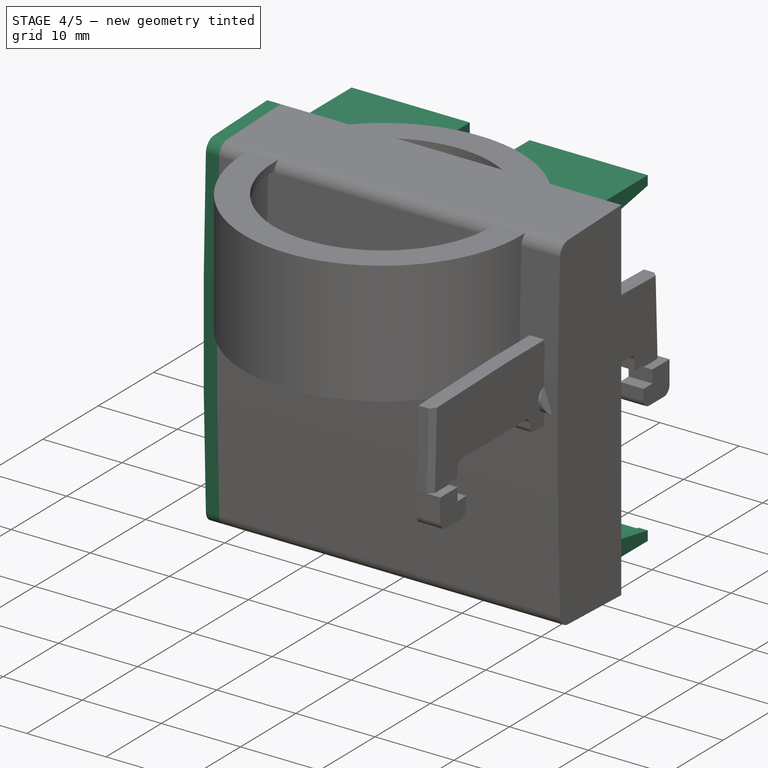
[diagram: stage 4 of 5 — iso view after this stage's code; geometry added in this stage tinted green]
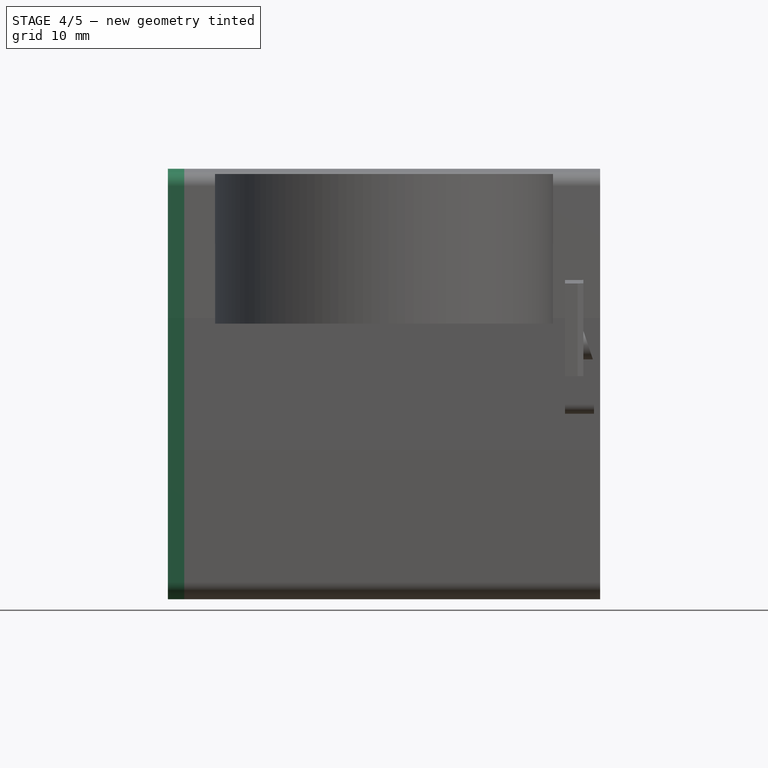
[diagram: stage 4 of 5 — front view after this stage's code; geometry added in this stage tinted green]
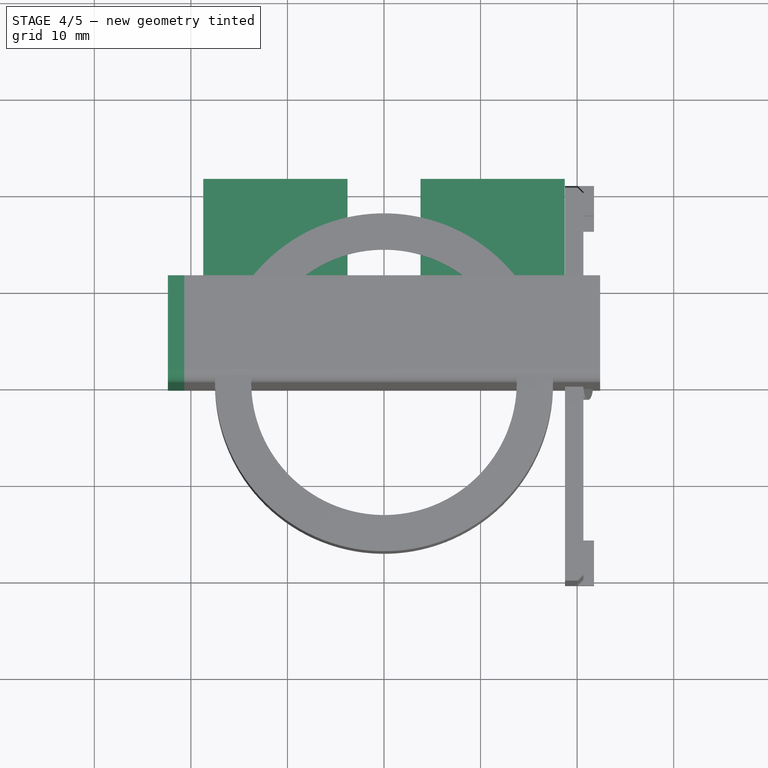
[diagram: stage 4 of 5 — top view after this stage's code; geometry added in this stage tinted green]
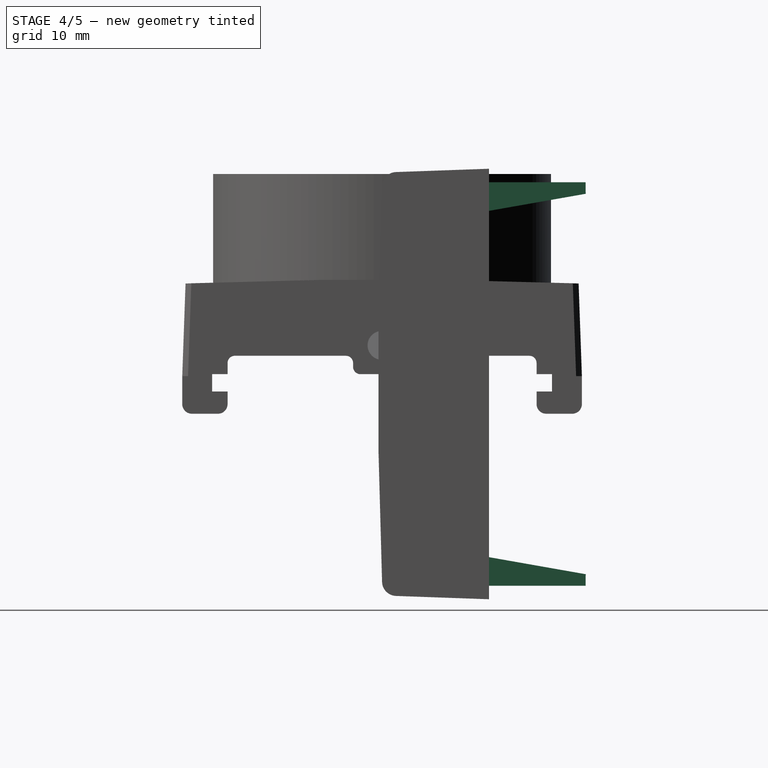
[diagram: stage 4 of 5 — right view after this stage's code; geometry added in this stage tinted green]
FEATURE [PartDesign::Pad] Pad002
  BaseFeature = -> Pad001
  Direction = (1,-2e-16,3e-16)
  Length = 1.692
  Length2 = 10
  Placement = pos=(0,0,0) rot=(0.57735,0.57735,0.57735;2.0944rad)
  Profile = -> Sketch002
  ReferenceAxis = -> Sketch002 [N_Axis]
  Reversed = true
  Type = 0
FEATURE [Sketcher::SketchObject] Sketch003
  FullyConstrained = true
  MapMode = 5
  Placement = pos=(0,0,0) rot=(1,0,0;1.5708rad)
  Support = -> [XZ_Plane]
  sketch-geometry (16):
    g0: LineSegment StartX=-18.7209 StartY=20.9 StartZ=0 EndX=-3.7791 EndY=20.9 EndZ=0
    g1: LineSegment StartX=-3.7791 StartY=20.9 StartZ=0 EndX=-3.7791 EndY=19.8289 EndZ=0
    g2: LineSegment StartX=-3.7791 StartY=19.8289 StartZ=0 EndX=-18.7209 EndY=19.8289 EndZ=0
    g3: LineSegment StartX=-18.7209 StartY=19.8289 StartZ=0 EndX=-18.7209 EndY=20.9 EndZ=0
    g4: LineSegment StartX=3.7791 StartY=19.8289 StartZ=0 EndX=18.7209 EndY=19.8289 EndZ=0
    g5: LineSegment StartX=18.7209 StartY=19.8289 StartZ=0 EndX=18.7209 EndY=20.9 EndZ=0
    g6: LineSegment StartX=18.7209 StartY=20.9 StartZ=0 EndX=3.7791 EndY=20.9 EndZ=0
    g7: LineSegment StartX=3.7791 StartY=20.9 StartZ=0 EndX=3.7791 EndY=19.8289 EndZ=0
    g8: LineSegment StartX=-18.7209 StartY=-20.9 StartZ=0 EndX=-3.7791 EndY=-20.9 EndZ=0
    g9: LineSegment StartX=-3.7791 StartY=-20.9 StartZ=0 EndX=-3.7791 EndY=-19.8289 EndZ=0
    g10: LineSegment StartX=-3.7791 StartY=-19.8289 StartZ=0 EndX=-18.7209 EndY=-19.8289 EndZ=0
    g11: LineSegment StartX=-18.7209 StartY=-19.8289 StartZ=0 EndX=-18.7209 EndY=-20.9 EndZ=0
    g12: LineSegment StartX=3.7791 StartY=-20.9 StartZ=0 EndX=18.7209 EndY=-20.9 EndZ=0
    g13: LineSegment StartX=18.7209 StartY=-20.9 StartZ=0 EndX=18.7209 EndY=-19.8289 EndZ=0
    g14: LineSegment StartX=18.7209 StartY=-19.8289 StartZ=0 EndX=3.7791 EndY=-19.8289 EndZ=0
    g15: LineSegment StartX=3.7791 StartY=-19.8289 StartZ=0 EndX=3.7791 EndY=-20.9 EndZ=0
  constraints (45):
    c: Coincident(g0,g1)
    c: Coincident(g1,g2)
    c: Coincident(g2,g3)
    c: Coincident(g3,g0)
    c: Horizontal(g0)
    c: Horizontal(g2)
    c: Vertical(g1)
    c: Vertical(g3)
    c: Coincident(g4,g5)
    c: Coincident(g5,g6)
    c: Coincident(g6,g7)
    c: Coincident(g7,g4)
    c: Horizontal(g4)
    c: Horizontal(g6)
    c: Vertical(g5)
    c: Vertical(g7)
    c: Coincident(g8,g9)
    c: Coincident(g9,g10)
    c: Coincident(g10,g11)
    c: Coincident(g11,g8)
    c: Horizontal(g8)
    c: Horizontal(g10)
    c: Vertical(g9)
    c: Vertical(g11)
    c: Coincident(g12,g13)
    c: Coincident(g13,g14)
    c: Coincident(g14,g15)
    c: Coincident(g15,g12)
    c: Horizontal(g12)
    c: Horizontal(g14)
    c: Vertical(g13)
    c: Vertical(g15)
    c: Symmetric(g12,g8,g-2)
    c: Equal(g1,g7)
    c: Equal(g7,g9)
    c: Equal(g9,g15)
    c: Equal(g6,g2)
    c: Equal(g2,g10)
    c: Equal(g10,g14)
    c: DistanceX(g0,g0) = 14.9418
    c: DistanceY(g3,g3) = 1.0711
    c: DistanceY(g8,g0) = 41.8
    c: DistanceX(g0,g6) = 7.5582
    c: Symmetric(g1,g4,g-2)
    c: Symmetric(g9,g1,g-1)
FEATURE [PartDesign::Pad] Pad003
  BaseFeature = -> Pad002
  Direction = (0,-1,-2e-16)
  Length = 21.08
  Length2 = -1
  Placement = pos=(0,0,0) rot=(0.57735,0.57735,0.57735;2.0944rad)
  Profile = -> Sketch003
  ReferenceAxis = -> Sketch003 [N_Axis]
  Reversed = true
  Type = 4
FEATURE [Sketcher::SketchObject] Sketch004
  AttachmentOffset = pos=(0,0,3.78) rot=(0,0,1;0rad)
  FullyConstrained = true
  MapMode = 5
  Placement = pos=(3.78,-8e-16,8e-16) rot=(0.57735,0.57735,0.57735;2.0944rad)
  Support = -> [YZ_Plane]
  sketch-geometry (8):
    g0: LineSegment StartX=1.35866 StartY=16.22 StartZ=0 EndX=1.488 EndY=19.8289 EndZ=0
    g1: LineSegment StartX=1.488 StartY=19.8289 StartZ=0 EndX=21.0947 EndY=19.8289 EndZ=0
    g2: LineSegment StartX=21.0947 StartY=19.8289 StartZ=0 EndX=21.0947 EndY=19.7 EndZ=0
    g3: LineSegment StartX=21.0947 StartY=19.7 StartZ=0 EndX=1.35866 EndY=16.22 EndZ=0
    g4: LineSegment StartX=1.35866 StartY=-16.22 StartZ=0 EndX=1.488 EndY=-19.8289 EndZ=0
    g5: LineSegment StartX=1.488 StartY=-19.8289 StartZ=0 EndX=21.0947 EndY=-19.8289 EndZ=0
    g6: LineSegment StartX=21.0947 StartY=-19.8289 StartZ=0 EndX=21.0947 EndY=-19.7 EndZ=0
    g7: LineSegment StartX=21.0947 StartY=-19.7 StartZ=0 EndX=1.35866 EndY=-16.22 EndZ=0
  constraints (22):
    c: Coincident(g0,g1)
    c: Horizontal(g1)
    c: Coincident(g1,g2)
    c: Vertical(g2)
    c: Coincident(g2,g3)
    c: Coincident(g3,g0)
    c: Coincident(g4,g5)
    c: Horizontal(g5)
    c: Coincident(g5,g6)
    c: Vertical(g6)
    c: Coincident(g6,g7)
    c: Coincident(g7,g4)
    c: Symmetric(g4,g0,g-1)
    c: Symmetric(g2,g6,g-1)
    c: Equal(g6,g2)
    c: DistanceX(g-1,g1) = 21.0947
    c: DistanceY(g2,g2) = 0.1289
    c: DistanceX(g1,g1) = 19.6067
    c: Distance(g3) = 20.0405
    c: Distance(g0) = 3.6112
    c: DistanceY(g6,g2) = 39.4
    c: Equal(g1,g5)
FEATURE [Sketcher::SketchObject] Sketch005
  AttachmentOffset = pos=(0,0,-3.78) rot=(0,0,1;0rad)
  FullyConstrained = true
  MapMode = 5
  Placement = pos=(-3.78,8e-16,-8e-16) rot=(0.57735,0.57735,0.57735;2.0944rad)
  Support = -> [YZ_Plane]
  sketch-geometry (8):
    g0: LineSegment StartX=1.35866 StartY=16.22 StartZ=0 EndX=1.488 EndY=19.8289 EndZ=0
    g1: LineSegment StartX=1.488 StartY=19.8289 StartZ=0 EndX=21.0947 EndY=19.8289 EndZ=0
    g2: LineSegment StartX=21.0947 StartY=19.8289 StartZ=0 EndX=21.0947 EndY=19.7 EndZ=0
    g3: LineSegment StartX=21.0947 StartY=19.7 StartZ=0 EndX=1.35866 EndY=16.22 EndZ=0
    g4: LineSegment StartX=1.35866 StartY=-16.22 StartZ=0 EndX=1.488 EndY=-19.8289 EndZ=0
    g5: LineSegment StartX=1.488 StartY=-19.8289 StartZ=0 EndX=21.0947 EndY=-19.8289 EndZ=0
    g6: LineSegment StartX=21.0947 StartY=-19.8289 StartZ=0 EndX=21.0947 EndY=-19.7 EndZ=0
    g7: LineSegment StartX=21.0947 StartY=-19.7 StartZ=0 EndX=1.35866 EndY=-16.22 EndZ=0
  constraints (22):
    c: Coincident(g0,g1)
    c: Horizontal(g1)
    c: Coincident(g1,g2)
    c: Vertical(g2)
    c: Coincident(g2,g3)
    c: Coincident(g3,g0)
    c: Coincident(g4,g5)
    c: Horizontal(g5)
    c: Coincident(g5,g6)
    c: Vertical(g6)
    c: Coincident(g6,g7)
    c: Coincident(g7,g4)
    c: Symmetric(g4,g0,g-1)
    c: Symmetric(g2,g6,g-1)
    c: Equal(g6,g2)
    c: DistanceX(g-1,g1) = 21.0947
    c: DistanceY(g2,g2) = 0.1289
    c: DistanceX(g1,g1) = 19.6067
    c: Distance(g3) = 20.0405
    c: Distance(g0) = 3.6112
    c: DistanceY(g6,g2) = 39.4
    c: Equal(g1,g5)
FEATURE [Sketcher::SketchObject] Sketch006
  AttachmentOffset = pos=(0,0,18.72) rot=(0,0,1;0rad)
  FullyConstrained = true
  MapMode = 5
  Placement = pos=(18.72,-4.2e-15,4.2e-15) rot=(0.57735,0.57735,0.57735;2.0944rad)
  Support = -> [YZ_Plane]
  sketch-geometry (8):
    g0: LineSegment StartX=1.35866 StartY=16.22 StartZ=0 EndX=1.488 EndY=19.8289 EndZ=0
    g1: LineSegment StartX=1.488 StartY=19.8289 StartZ=0 EndX=21.0947 EndY=19.8289 EndZ=0
    g2: LineSegment StartX=21.0947 StartY=19.8289 StartZ=0 EndX=21.0947 EndY=19.7 EndZ=0
    g3: LineSegment StartX=21.0947 StartY=19.7 StartZ=0 EndX=1.35866 EndY=16.22 EndZ=0
    g4: LineSegment StartX=1.35866 StartY=-16.22 StartZ=0 EndX=1.488 EndY=-19.8289 EndZ=0
    g5: LineSegment StartX=1.488 StartY=-19.8289 StartZ=0 EndX=21.0947 EndY=-19.8289 EndZ=0
    g6: LineSegment StartX=21.0947 StartY=-19.8289 StartZ=0 EndX=21.0947 EndY=-19.7 EndZ=0
    g7: LineSegment StartX=21.0947 StartY=-19.7 StartZ=0 EndX=1.35866 EndY=-16.22 EndZ=0
  constraints (22):
    c: Coincident(g0,g1)
    c: Horizontal(g1)
    c: Coincident(g1,g2)
    c: Vertical(g2)
    c: Coincident(g2,g3)
    c: Coincident(g3,g0)
    c: Coincident(g4,g5)
    c: Horizontal(g5)
    c: Coincident(g5,g6)
    c: Vertical(g6)
    c: Coincident(g6,g7)
    c: Coincident(g7,g4)
    c: Symmetric(g4,g0,g-1)
    c: Symmetric(g2,g6,g-1)
    c: Equal(g6,g2)
    c: DistanceX(g-1,g1) = 21.0947
    c: DistanceY(g2,g2) = 0.1289
    c: DistanceX(g1,g1) = 19.6067
    c: Distance(g3) = 20.0405
    c: Distance(g0) = 3.6112
    c: DistanceY(g6,g2) = 39.4
    c: Equal(g1,g5)
FEATURE [Sketcher::SketchObject] Sketch007
  AttachmentOffset = pos=(0,0,-18.72) rot=(0,0,1;0rad)
  FullyConstrained = true
  MapMode = 5
  Placement = pos=(-18.72,4.2e-15,-4.2e-15) rot=(0.57735,0.57735,0.57735;2.0944rad)
  Support = -> [YZ_Plane]
  sketch-geometry (8):
    g0: LineSegment StartX=1.35866 StartY=16.22 StartZ=0 EndX=1.488 EndY=19.8289 EndZ=0
    g1: LineSegment StartX=1.488 StartY=19.8289 StartZ=0 EndX=21.0947 EndY=19.8289 EndZ=0
    g2: LineSegment StartX=21.0947 StartY=19.8289 StartZ=0 EndX=21.0947 EndY=19.7 EndZ=0
    g3: LineSegment StartX=21.0947 StartY=19.7 StartZ=0 EndX=1.35866 EndY=16.22 EndZ=0
    g4: LineSegment StartX=1.35866 StartY=-16.22 StartZ=0 EndX=1.488 EndY=-19.8289 EndZ=0
    g5: LineSegment StartX=1.488 StartY=-19.8289 StartZ=0 EndX=21.0947 EndY=-19.8289 EndZ=0
    g6: LineSegment StartX=21.0947 StartY=-19.8289 StartZ=0 EndX=21.0947 EndY=-19.7 EndZ=0
    g7: LineSegment StartX=21.0947 StartY=-19.7 StartZ=0 EndX=1.35866 EndY=-16.22 EndZ=0
  constraints (22):
    c: Coincident(g0,g1)
    c: Horizontal(g1)
    c: Coincident(g1,g2)
    c: Vertical(g2)
    c: Coincident(g2,g3)
    c: Coincident(g3,g0)
    c: Coincident(g4,g5)
    c: Horizontal(g5)
    c: Coincident(g5,g6)
    c: Vertical(g6)
    c: Coincident(g6,g7)
    c: Coincident(g7,g4)
    c: Symmetric(g4,g0,g-1)
    c: Symmetric(g2,g6,g-1)
    c: Equal(g6,g2)
    c: DistanceX(g-1,g1) = 21.0947
    c: DistanceY(g2,g2) = 0.1289
    c: DistanceX(g1,g1) = 19.6067
    c: Distance(g3) = 20.0405
    c: Distance(g0) = 3.6112
    c: DistanceY(g6,g2) = 39.4
    c: Equal(g1,g5)
FEATURE [PartDesign::Pad] Pad004
  BaseFeature = -> Pad003
  Direction = (1,-2e-16,3e-16)
  Length = 1.1445
  Length2 = 10
  Placement = pos=(0,0,0) rot=(0.57735,0.57735,0.57735;2.0944rad)
  Profile = -> Sketch004
  ReferenceAxis = -> Sketch004 [N_Axis]
  Type = 0
FEATURE [PartDesign::Pad] Pad005
  BaseFeature = -> Pad004
  Direction = (1,-2e-16,3e-16)
  Length = 1.1445
  Length2 = 10
  Placement = pos=(0,0,0) rot=(0.57735,0.57735,0.57735;2.0944rad)
  Profile = -> Sketch005
  ReferenceAxis = -> Sketch005 [N_Axis]
  Reversed = true
  Type = 0
FEATURE [PartDesign::Pad] Pad006
  BaseFeature = -> Pad005
  Direction = (1,-2e-16,3e-16)
  Length = 1.1445
  Length2 = 10
  Placement = pos=(0,0,0) rot=(0.57735,0.57735,0.57735;2.0944rad)
  Profile = -> Sketch006
  ReferenceAxis = -> Sketch006 [N_Axis]
  Reversed = true
  Type = 0
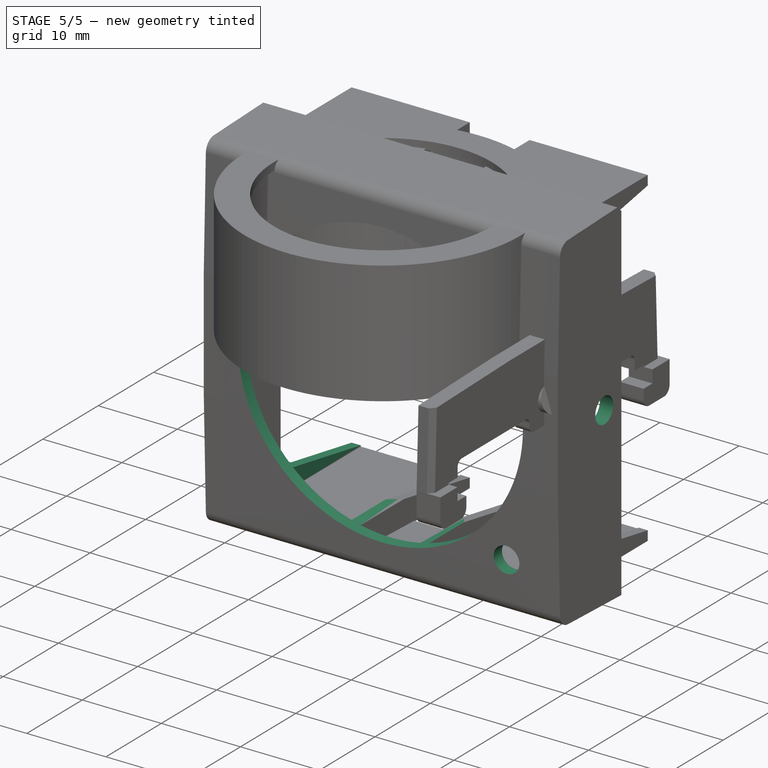
[diagram: stage 5 of 5 — iso view after this stage's code; geometry added in this stage tinted green]
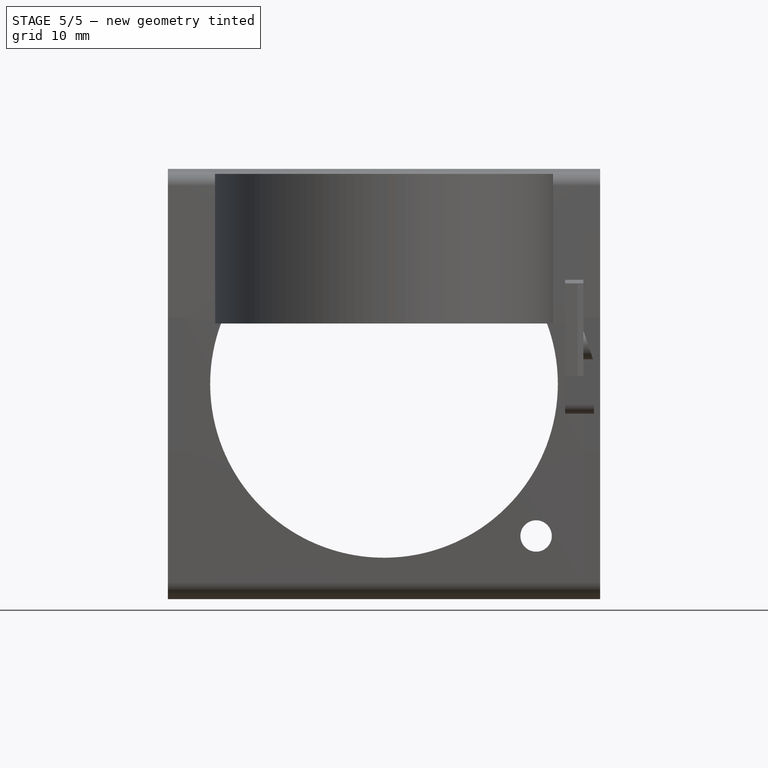
[diagram: stage 5 of 5 — front view after this stage's code; geometry added in this stage tinted green]
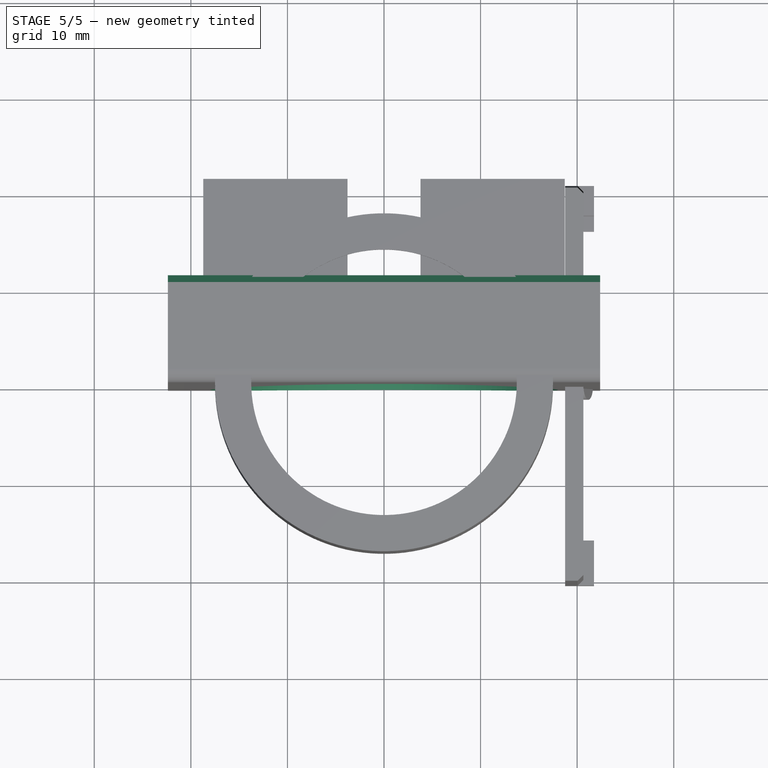
[diagram: stage 5 of 5 — top view after this stage's code; geometry added in this stage tinted green]
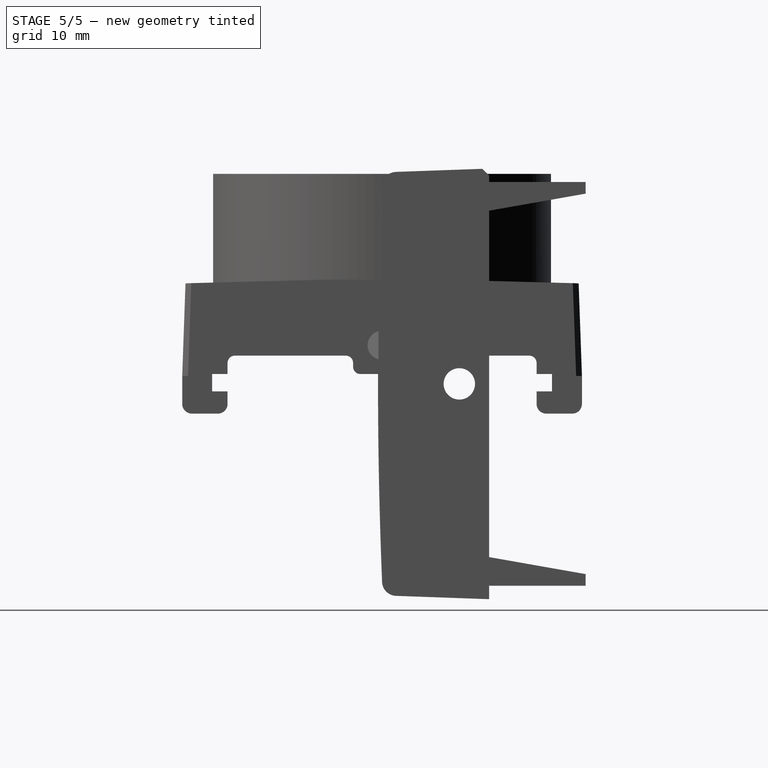
[diagram: stage 5 of 5 — right view after this stage's code; geometry added in this stage tinted green]
FEATURE [PartDesign::Pad] Pad007
  BaseFeature = -> Pad006
  Direction = (1,-2e-16,3e-16)
  Length = 1.1445
  Length2 = 10
  Placement = pos=(0,0,0) rot=(0.57735,0.57735,0.57735;2.0944rad)
  Profile = -> Sketch007
  ReferenceAxis = -> Sketch007 [N_Axis]
  Type = 0
FEATURE [Sketcher::SketchObject] Sketch008
  FullyConstrained = true
  MapMode = 5
  Placement = pos=(0,0,0) rot=(1,0,0;1.5708rad)
  Support = -> [XZ_Plane]
  sketch-geometry (4):
    g0: Circle CenterX=0 CenterY=0 CenterZ=0 NormalX=0 NormalY=0 NormalZ=1 AngleXU=0 Radius=18
    g1: Circle CenterX=15.7501 CenterY=-15.7501 CenterZ=0 NormalX=0 NormalY=0 NormalZ=1 AngleXU=0 Radius=1.625
    g2: LineSegment StartX=15.7501 StartY=-15.7501 StartZ=0 EndX=15.7501 EndY=0 EndZ=0
    g3: LineSegment StartX=15.7501 StartY=-15.7501 StartZ=0 EndX=0 EndY=-15.7501 EndZ=0
  constraints (11):
    c: Coincident(g0,g-1)
    c: Diameter(g0) = 36
    c: Coincident(g2,g1)
    c: PointOnObject(g2,g-1)
    c: Vertical(g2)
    c: Coincident(g3,g1)
    c: PointOnObject(g3,g-2)
    c: Horizontal(g3)
    c: Equal(g3,g2)
    c: Distance(g1,g0) = 22.274
    c: Diameter(g1) = 3.25
FEATURE [PartDesign::Pocket] Pocket
  BaseFeature = -> Pad007
  Direction = (0,1,2e-16)
  Length = 3
  Length2 = 5
  Midplane = true
  Placement = pos=(0,0,0) rot=(0.57735,0.57735,0.57735;2.0944rad)
  Profile = -> Sketch008
  ReferenceAxis = -> Sketch008 [N_Axis]
  Type = 1
FEATURE [App::MeasureDistance] Distance  label="Distance: 44,76 mm"
  Distance = 44.764
  P1 = (22.382,-22.2927,0.920902)
  P2 = (-22.382,-22.2927,0.920902)
FEATURE [PartDesign::Chamfer] Chamfer001
  Angle = 45
  Base = -> Pocket [Edge27,Edge47,Edge115,Edge25]
  BaseFeature = -> Pocket
  ChamferType = 0
  FlipDirection = false
  Placement = pos=(0,0,0) rot=(0.57735,0.57735,0.57735;2.0944rad)
  Size = 0.7
  Size2 = 1
  SupportTransform = false
  UseAllEdges = false
FEATURE [Sketcher::SketchObject] Sketch013
  FullyConstrained = true
  MapMode = 5
  Placement = pos=(0,0,0) rot=(0.57735,0.57735,0.57735;2.0944rad)
  Support = -> [YZ_Plane]
  sketch-geometry (1):
    g0: Circle CenterX=8 CenterY=0 CenterZ=0 NormalX=0 NormalY=0 NormalZ=1 AngleXU=0 Radius=1.625
  constraints (3):
    c: PointOnObject(g0,g-1)
    c: DistanceX(g0) = 8
    c: Diameter(g0) = 3.25
FEATURE [PartDesign::Pocket] Pocket001
  BaseFeature = -> Chamfer001
  Direction = (-1,2e-16,-3e-16)
  Length = 5
  Length2 = 5
  Midplane = true
  Placement = pos=(0,0,0) rot=(0.57735,0.57735,0.57735;2.0944rad)
  Profile = -> Sketch013
  ReferenceAxis = -> Sketch013 [N_Axis]
  Type = 1
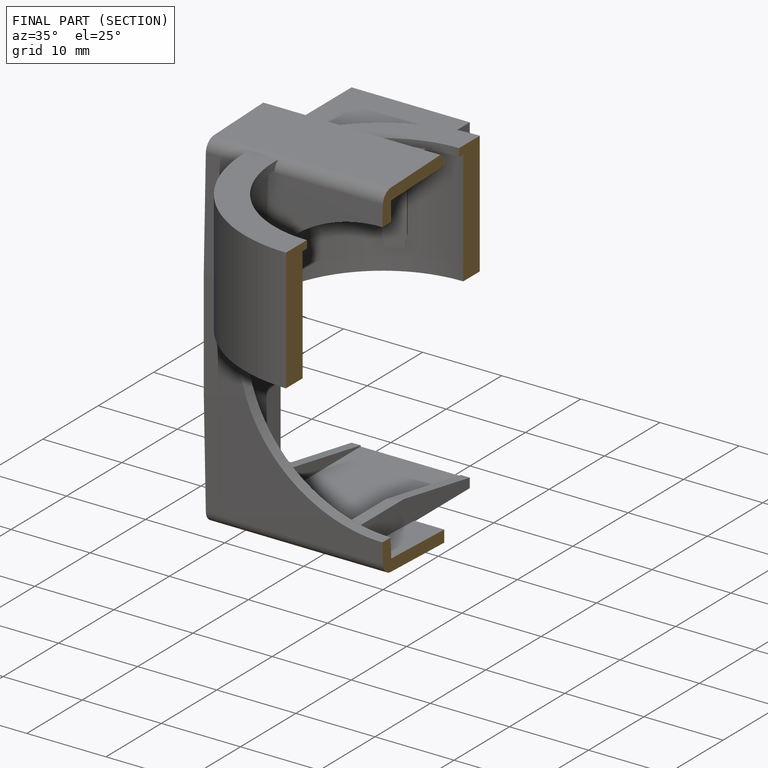
[diagram: finished part — half-section view (interior)]
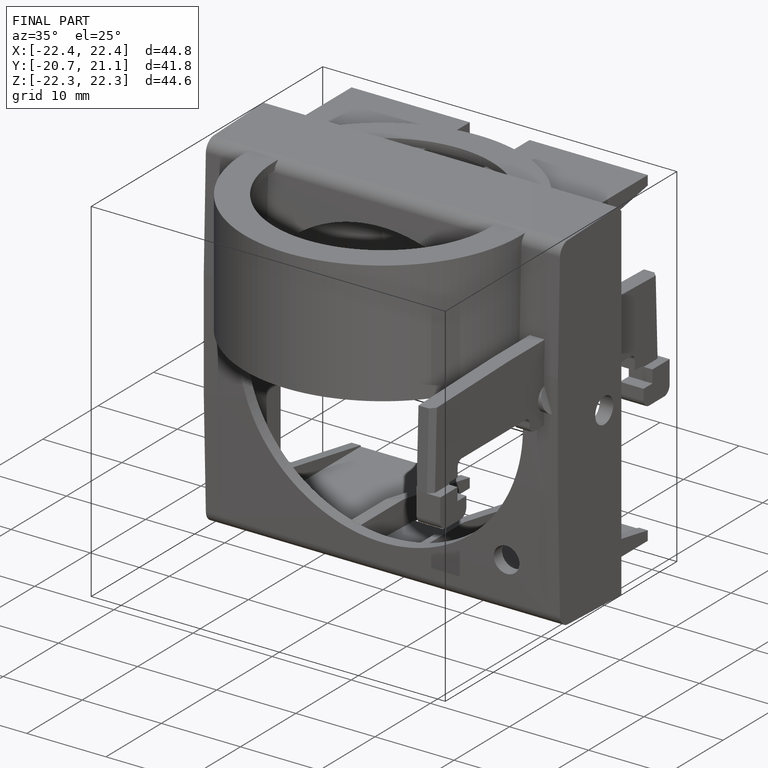
[diagram: finished part — iso view with bounding-box wireframe]
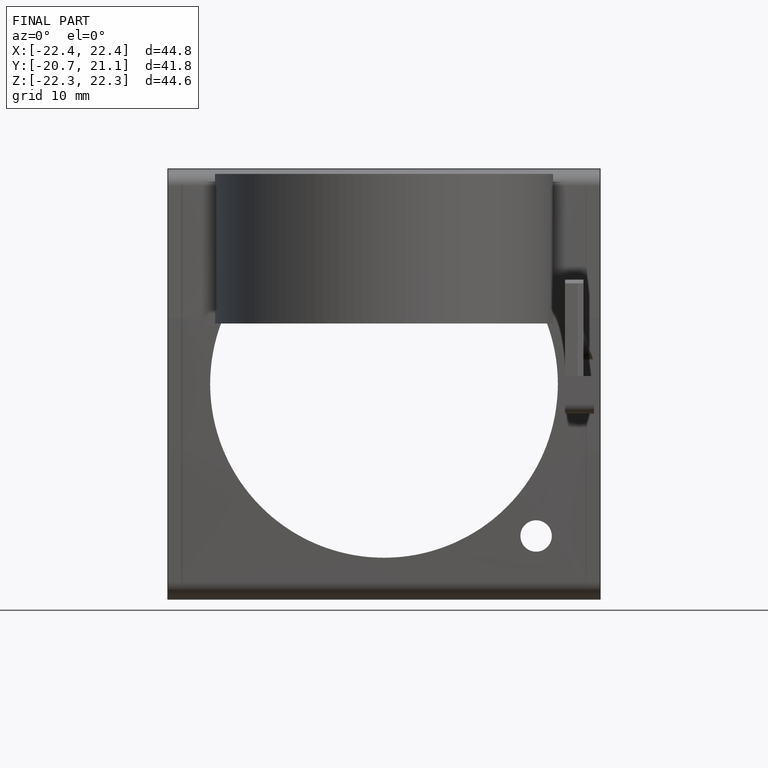
[diagram: finished part — front view with bounding-box wireframe]
